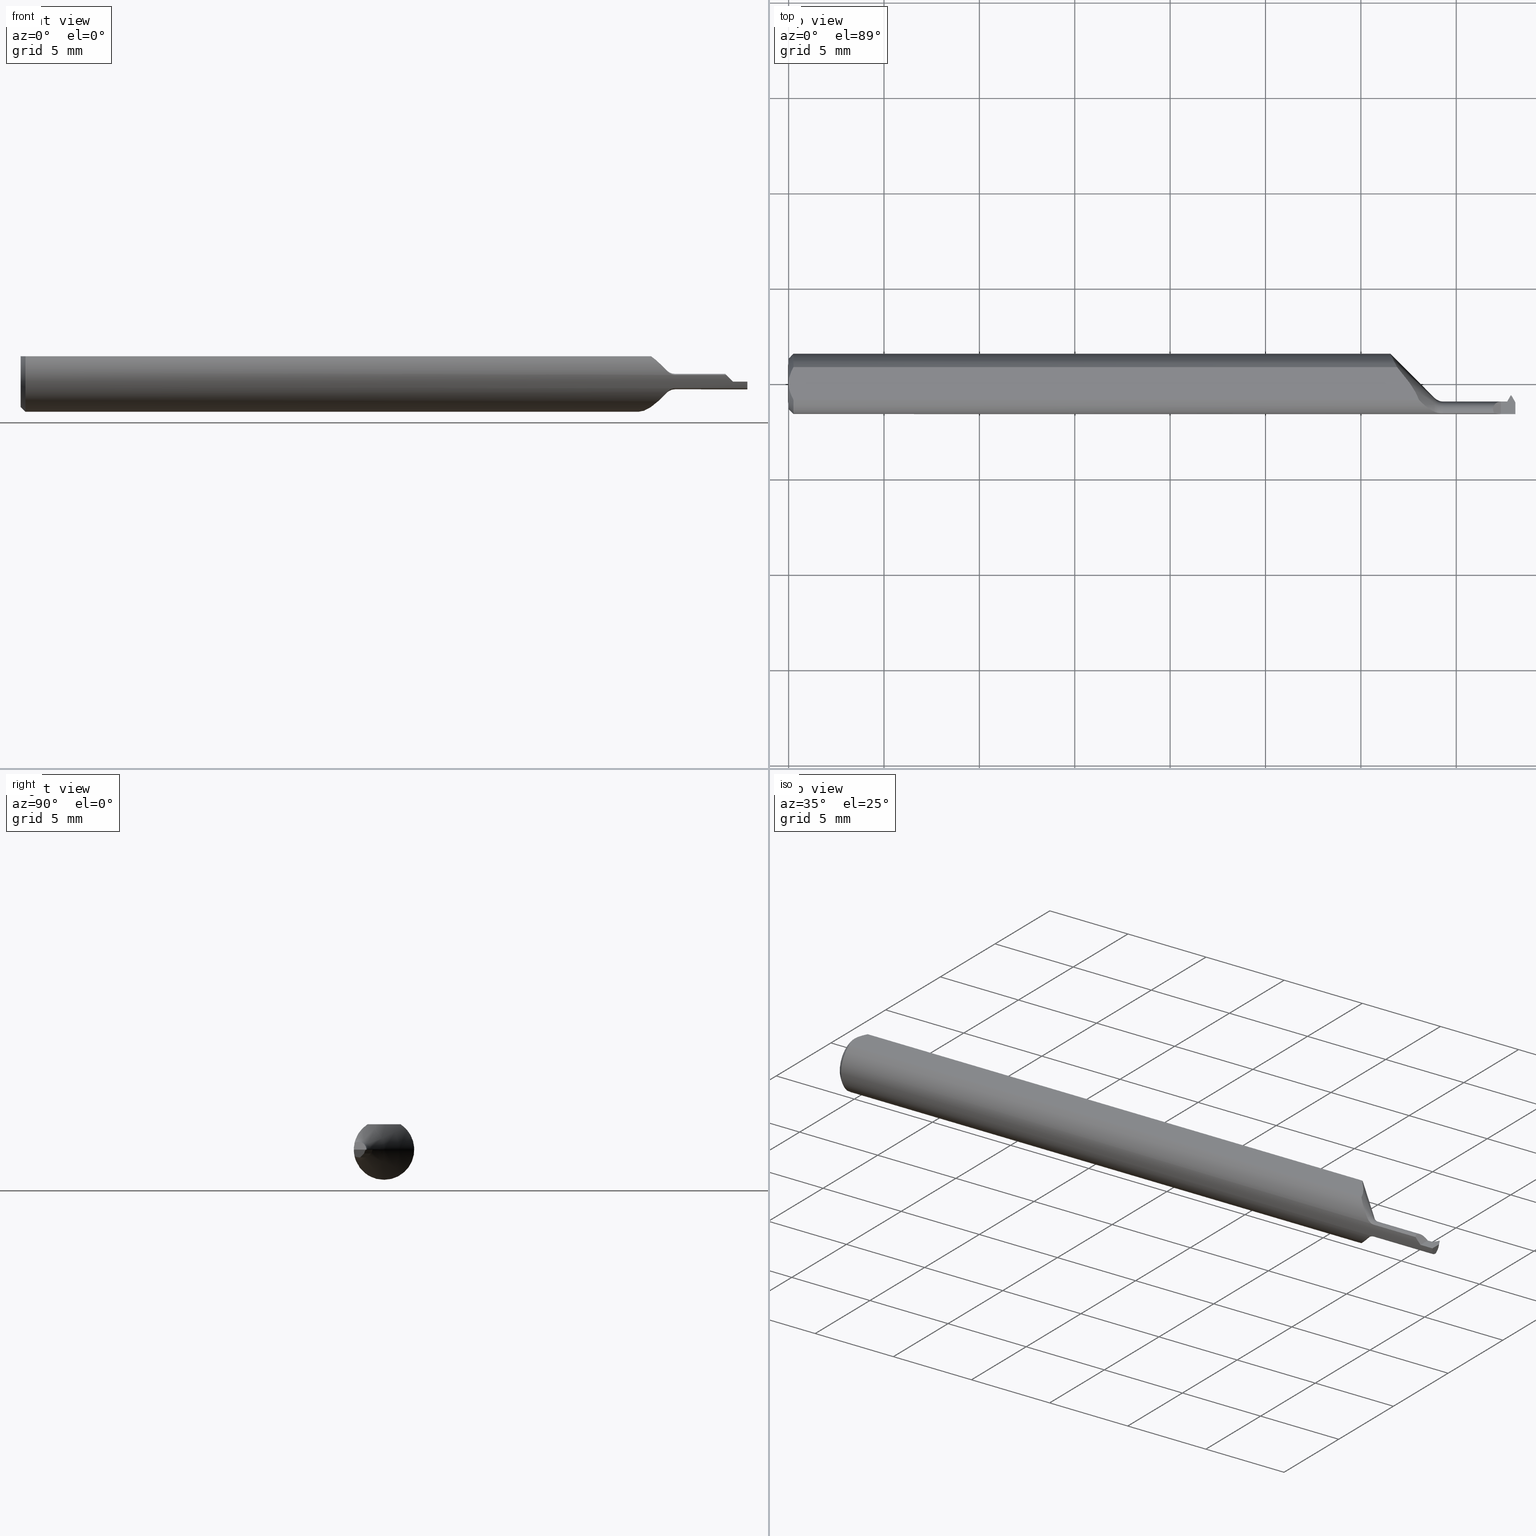
[diagram: canonical four-view strip — front | top / right | iso, engineering-drawing reading convention]
A machine part, canonical four-view strip (front | top / right | iso — engineering-drawing reading convention). The complete STEP part file that produces these views, byte-faithful:
ISO-10303-21;
HEADER;
FILE_DESCRIPTION (( 'STEP AP203' ),
    '1' );
FILE_NAME ('230007-TT040130.STEP',
    '2025-04-28T22:43:58',
    ( '' ),
    ( '' ),
    'SwSTEP 2.0',
    'SolidWorks 2024',
    '' );
FILE_SCHEMA (( 'CONFIG_CONTROL_DESIGN' ));
ENDSEC;

DATA;
#1 = ADVANCED_FACE ( 'NONE', ( #526 ), #479, .T. ) ;
#2 = CARTESIAN_POINT ( 'NONE',  ( 1.490999999999999659, 0.4617666623640701573, 0.4795058737510709546 ) ) ;
#3 = DIRECTION ( 'NONE',  ( 1.000000000000000000, 0.000000000000000000, 0.000000000000000000 ) ) ;
#4 = AXIS2_PLACEMENT_3D ( 'NONE', #648, #410, #726 ) ;
#5 = CALENDAR_DATE ( 2025, 28, 4 ) ;
#6 = AXIS2_PLACEMENT_3D ( 'NONE', #35, #661, #282 ) ;
#7 = CARTESIAN_POINT ( 'NONE',  ( 0.009999999999999887451, 0.03386738844375224849, 0.05234999999999997294 ) ) ;
#8 = CARTESIAN_POINT ( 'NONE',  ( 0.000000000000000000, 0.000000000000000000, 0.000000000000000000 ) ) ;
#9 = PERSON_AND_ORGANIZATION ( #677, #186 ) ;
#10 = DIRECTION ( 'NONE',  ( -0.1027016844787107946, 0.6087793493571359571, 0.7866638848971888587 ) ) ;
#11 = EDGE_CURVE ( 'NONE', #643, #597, #400, .T. ) ;
#12 = PERSON_AND_ORGANIZATION ( #677, #186 ) ;
#13 = DIRECTION ( 'NONE',  ( 0.000000000000000000, -1.000000000000000000, 0.000000000000000000 ) ) ;
#14 = CIRCLE ( 'NONE', #264, 0.06235000000000000264 ) ;
#15 = ORIENTED_EDGE ( 'NONE', *, *, #603, .T. ) ;
#16 = MANIFOLD_SOLID_BREP ( 'Cut-Sweep1', #721 ) ;
#17 = DIRECTION ( 'NONE',  ( 5.738690339323287023E-17, -1.000000000000000000, 0.000000000000000000 ) ) ;
#18 = VECTOR ( 'NONE', #107, 39.37007874015748854 ) ;
#19 = ORIENTED_EDGE ( 'NONE', *, *, #672, .T. ) ;
#20 = CARTESIAN_POINT ( 'NONE',  ( 1.335514613592296840, -0.05908664951645565405, -0.02008857447892332254 ) ) ;
#21 = EDGE_CURVE ( 'NONE', #707, #754, #387, .T. ) ;
#22 = PERSON_AND_ORGANIZATION_ROLE ( 'creator' ) ;
#23 = FACE_OUTER_BOUND ( 'NONE', #676, .T. ) ;
#24 = EDGE_LOOP ( 'NONE', ( #171, #214, #698 ) ) ;
#25 = CARTESIAN_POINT ( 'NONE',  ( 1.500000000000000222, -0.04132766865511521698, -0.007999999999999955064 ) ) ;
#26 = ORIENTED_EDGE ( 'NONE', *, *, #298, .T. ) ;
#27 = EDGE_LOOP ( 'NONE', ( #79, #713 ) ) ;
#28 = CARTESIAN_POINT ( 'NONE',  ( 1.481084930914247089, -0.03634999999999997261, 0.000000000000000000 ) ) ;
#29 =( GEOMETRIC_REPRESENTATION_CONTEXT ( 3 ) GLOBAL_UNCERTAINTY_ASSIGNED_CONTEXT ( ( #454 ) ) GLOBAL_UNIT_ASSIGNED_CONTEXT ( ( #635, #630, #381 ) ) REPRESENTATION_CONTEXT ( 'NONE', 'WORKASPACE' ) );
#30 = CC_DESIGN_PERSON_AND_ORGANIZATION_ASSIGNMENT ( #693, #22, ( #388 ) ) ;
#31 = EDGE_CURVE ( 'NONE', #58, #402, #412, .T. ) ;
#32 = CARTESIAN_POINT ( 'NONE',  ( 1.530712524866896240, 0.03504489937931520860, -0.01600000000000001421 ) ) ;
#33 = CARTESIAN_POINT ( 'NONE',  ( 1.255120519318515981, 0.03508918483241450781, -0.05178107122348592911 ) ) ;
#34 = APPROVAL_STATUS ( 'not_yet_approved' ) ;
#35 = CARTESIAN_POINT ( 'NONE',  ( 1.490500000000000158, -0.02334999999999999923, 0.000000000000000000 ) ) ;
#36 = CARTESIAN_POINT ( 'NONE',  ( 1.350999999999999979, -0.06086002865329517841, -0.01354914802930766264 ) ) ;
#37 = ADVANCED_FACE ( 'NONE', ( #407 ), #468, .F. ) ;
#38 = ORIENTED_EDGE ( 'NONE', *, *, #11, .F. ) ;
#39 = DIRECTION ( 'NONE',  ( -0.001540819590689127298, -0.3746061487342010055, -0.9271827539409469576 ) ) ;
#40 = LINE ( 'NONE', #224, #112 ) ;
#41 = ORIENTED_EDGE ( 'NONE', *, *, #530, .T. ) ;
#42 = APPROVAL_PERSON_ORGANIZATION ( #197, #489, #561 ) ;
#43 = DIRECTION ( 'NONE',  ( -0.02294223196864397102, 0.9997367923570168458, 0.000000000000000000 ) ) ;
#44 = CIRCLE ( 'NONE', #577, 0.05235000000000033377 ) ;
#45 = ORIENTED_EDGE ( 'NONE', *, *, #181, .T. ) ;
#46 = EDGE_CURVE ( 'NONE', #49, #231, #53, .T. ) ;
#47 = PRODUCT ( '230007-TT040130', '230007-TT040130', '', ( #756 ) ) ;
#48 = FACE_OUTER_BOUND ( 'NONE', #245, .T. ) ;
#49 = VERTEX_POINT ( 'NONE', #236 ) ;
#50 = CARTESIAN_POINT ( 'NONE',  ( 1.455766540632871031, -0.03635000000000006282, 0.01423345936712928916 ) ) ;
#51 = DIRECTION ( 'NONE',  ( 1.000000000000000000, 0.000000000000000000, 0.000000000000000000 ) ) ;
#52 = ORIENTED_EDGE ( 'NONE', *, *, #624, .F. ) ;
#53 =( BOUNDED_CURVE ( )  B_SPLINE_CURVE ( 3, ( #464, #654, #104, #668 ),
 .UNSPECIFIED., .F., .T. ) 
 B_SPLINE_CURVE_WITH_KNOTS ( ( 4, 4 ),
 ( 2.991310816743377732, 3.291874490436208056 ),
 .UNSPECIFIED. ) 
 CURVE ( )  GEOMETRIC_REPRESENTATION_ITEM ( )  RATIONAL_B_SPLINE_CURVE ( ( 1.000000000000000000, 0.9924859476630489841, 0.9924859476630489841, 1.000000000000000000 ) ) 
 REPRESENTATION_ITEM ( '' )  );
#54 = VECTOR ( 'NONE', #467, 39.37007874015748143 ) ;
#55 = CARTESIAN_POINT ( 'NONE',  ( 1.491486705364531984, -0.03458220980668112732, -0.01600000000000001421 ) ) ;
#56 = DIRECTION ( 'NONE',  ( 1.000000000000000000, 5.738690339323287023E-17, 0.000000000000000000 ) ) ;
#57 = EDGE_CURVE ( 'NONE', #437, #115, #416, .T. ) ;
#58 = VERTEX_POINT ( 'NONE', #594 ) ;
#59 = AXIS2_PLACEMENT_3D ( 'NONE', #302, #3, #247 ) ;
#60 = CARTESIAN_POINT ( 'NONE',  ( 0.009999999999999887451, 0.000000000000000000, 0.000000000000000000 ) ) ;
#61 = CARTESIAN_POINT ( 'NONE',  ( 1.322462965412670277, -0.05242313377551017367, 0.03436517021900221264 ) ) ;
#62 = CARTESIAN_POINT ( 'NONE',  ( 1.482994446500534913, -0.03635000000000006976, 0.000000000000000000 ) ) ;
#63 = EDGE_CURVE ( 'NONE', #402, #75, #95, .T. ) ;
#64 = VERTEX_POINT ( 'NONE', #351 ) ;
#65 = FACE_OUTER_BOUND ( 'NONE', #455, .T. ) ;
#66 = CARTESIAN_POINT ( 'NONE',  ( 1.682084930914247156, -0.05234999999999993825, -0.01600000000000001421 ) ) ;
#67 = DIRECTION ( 'NONE',  ( -1.224646799147350249E-16, 0.000000000000000000, -1.000000000000000000 ) ) ;
#68 = VECTOR ( 'NONE', #768, 39.37007874015748143 ) ;
#69 = CARTESIAN_POINT ( 'NONE',  ( 1.416542465457123479, -0.06086002865329513678, 0.01354914802930775805 ) ) ;
#70 = CARTESIAN_POINT ( 'NONE',  ( 0.000000000000000000, 0.000000000000000000, 0.05234999999999997294 ) ) ;
#71 = APPROVAL_ROLE ( '' ) ;
#72 = EDGE_CURVE ( 'NONE', #550, #710, #44, .T. ) ;
#73 = CARTESIAN_POINT ( 'NONE',  ( 1.487175960950038345, -1.496971022188108735, 0.2600946887543256758 ) ) ;
#74 = CYLINDRICAL_SURFACE ( 'NONE', #753, 0.06235000000000000264 ) ;
#75 = VERTEX_POINT ( 'NONE', #770 ) ;
#76 = DIRECTION ( 'NONE',  ( 1.000000000000000000, 0.000000000000000000, 0.000000000000000000 ) ) ;
#77 = FACE_OUTER_BOUND ( 'NONE', #793, .T. ) ;
#78 =( BOUNDED_CURVE ( )  B_SPLINE_CURVE ( 3, ( #752, #761, #629, #268 ),
 .UNSPECIFIED., .F., .T. ) 
 B_SPLINE_CURVE_WITH_KNOTS ( ( 4, 4 ),
 ( 3.342305517569140960, 4.511676116406237114 ),
 .UNSPECIFIED. ) 
 CURVE ( )  GEOMETRIC_REPRESENTATION_ITEM ( )  RATIONAL_B_SPLINE_CURVE ( ( 1.000000000000000000, 0.8892572147112807190, 0.8892572147112807190, 1.000000000000000000 ) ) 
 REPRESENTATION_ITEM ( '' )  );
#79 = ORIENTED_EDGE ( 'NONE', *, *, #637, .T. ) ;
#80 = CARTESIAN_POINT ( 'NONE',  ( 1.267454584078048674, 0.01260720869674350486, -0.06124853553781112181 ) ) ;
#81 = EDGE_CURVE ( 'NONE', #122, #707, #40, .T. ) ;
#82 = ORIENTED_EDGE ( 'NONE', *, *, #762, .F. ) ;
#83 = DIMENSIONAL_EXPONENTS ( 1.000000000000000000, 0.000000000000000000, 0.000000000000000000, 0.000000000000000000, 0.000000000000000000, 0.000000000000000000, 0.000000000000000000 ) ;
#84 = CALENDAR_DATE ( 2025, 28, 4 ) ;
#85 = CARTESIAN_POINT ( 'NONE',  ( 1.482994446500534913, -0.03635000000000006976, 0.000000000000000000 ) ) ;
#86 = VECTOR ( 'NONE', #670, 39.37007874015748143 ) ;
#87 = EDGE_LOOP ( 'NONE', ( #205, #289 ) ) ;
#88 = DIRECTION ( 'NONE',  ( 0.000000000000000000, -1.000000000000000000, 0.000000000000000000 ) ) ;
#89 = EDGE_CURVE ( 'NONE', #471, #115, #715, .T. ) ;
#90 = ORIENTED_EDGE ( 'NONE', *, *, #530, .F. ) ;
#91 = PLANE ( 'NONE',  #166 ) ;
#92 = ORIENTED_EDGE ( 'NONE', *, *, #57, .F. ) ;
#93 = CARTESIAN_POINT ( 'NONE',  ( 1.480646401958692460, -0.03635000000000005588, -0.002155438679221191416 ) ) ;
#94 = ORIENTED_EDGE ( 'NONE', *, *, #120, .F. ) ;
#95 = LINE ( 'NONE', #341, #18 ) ;
#96 = CARTESIAN_POINT ( 'NONE',  ( 1.259711240465376747, 0.02638752936846765554, -0.05671180232617656358 ) ) ;
#97 = AXIS2_PLACEMENT_3D ( 'NONE', #687, #485, #249 ) ;
#98 = APPROVAL_PERSON_ORGANIZATION ( #12, #466, #415 ) ;
#99 = LINE ( 'NONE', #344, #110 ) ;
#100 = EDGE_CURVE ( 'NONE', #586, #273, #101, .T. ) ;
#101 = LINE ( 'NONE', #346, #343 ) ;
#102 = PLANE ( 'NONE',  #680 ) ;
#103 = VECTOR ( 'NONE', #195, 39.37007874015748143 ) ;
#104 = CARTESIAN_POINT ( 'NONE',  ( 1.484130850350364961, -0.04042457170173155423, -0.01078764411677418482 ) ) ;
#105 = CARTESIAN_POINT ( 'NONE',  ( 1.301127731721387182, -0.03386738844375222074, 0.05234999999999997294 ) ) ;
#106 = ORIENTED_EDGE ( 'NONE', *, *, #21, .T. ) ;
#107 = DIRECTION ( 'NONE',  ( 0.4999999999999988898, 0.8660254037844391517, -0.000000000000000000 ) ) ;
#108 = ADVANCED_FACE ( 'NONE', ( #121 ), #679, .F. ) ;
#109 = EDGE_LOOP ( 'NONE', ( #19, #90 ) ) ;
#110 = VECTOR ( 'NONE', #572, 39.37007874015748143 ) ;
#111 = ORIENTED_EDGE ( 'NONE', *, *, #72, .F. ) ;
#112 = VECTOR ( 'NONE', #286, 39.37007874015748143 ) ;
#113 = ORIENTED_EDGE ( 'NONE', *, *, #490, .F. ) ;
#114 = DIRECTION ( 'NONE',  ( -0.4999999999999815148, -0.8660254037844492547, 0.000000000000000000 ) ) ;
#115 = VERTEX_POINT ( 'NONE', #366 ) ;
#116 = DIRECTION ( 'NONE',  ( 0.000000000000000000, -0.7071067811865433539, -0.7071067811865514585 ) ) ;
#117 = DIRECTION ( 'NONE',  ( -1.000000000000000000, -5.738690339323287023E-17, -0.000000000000000000 ) ) ;
#118 = ORIENTED_EDGE ( 'NONE', *, *, #81, .F. ) ;
#119 = DIRECTION ( 'NONE',  ( -1.000000000000000000, 0.000000000000000000, 1.224646799147350249E-16 ) ) ;
#120 = EDGE_CURVE ( 'NONE', #277, #293, #478, .T. ) ;
#121 = FACE_OUTER_BOUND ( 'NONE', #146, .T. ) ;
#122 = VERTEX_POINT ( 'NONE', #795 ) ;
#123 = VECTOR ( 'NONE', #219, 39.37007874015748143 ) ;
#124 = LINE ( 'NONE', #365, #764 ) ;
#125 = CARTESIAN_POINT ( 'NONE',  ( 1.333322330470335881, -0.05810997040527625390, 0.02259986370529519506 ) ) ;
#126 = FACE_OUTER_BOUND ( 'NONE', #428, .T. ) ;
#127 = PLANE ( 'NONE',  #161 ) ;
#128 = CARTESIAN_POINT ( 'NONE',  ( 0.000000000000000000, 0.000000000000000000, 0.05234999999999997294 ) ) ;
#129 = EDGE_CURVE ( 'NONE', #583, #471, #785, .T. ) ;
#130 = CARTESIAN_POINT ( 'NONE',  ( 1.490513294635467556, -0.02658220980668115491, -0.007999999999999955064 ) ) ;
#131 = LOCAL_TIME ( 15, 43, 58.00000000000000000, #448 ) ;
#132 = CIRCLE ( 'NONE', #59, 0.06235000000000000264 ) ;
#133 = APPROVAL_DATE_TIME ( #567, #607 ) ;
#134 = ORIENTED_EDGE ( 'NONE', *, *, #31, .T. ) ;
#135 = FACE_OUTER_BOUND ( 'NONE', #681, .T. ) ;
#136 = CALENDAR_DATE ( 2025, 28, 4 ) ;
#137 = DIRECTION ( 'NONE',  ( -1.000000000000000000, -5.738690339323287023E-17, -0.000000000000000000 ) ) ;
#138 = EDGE_CURVE ( 'NONE', #597, #58, #430, .T. ) ;
#139 = ORIENTED_EDGE ( 'NONE', *, *, #81, .T. ) ;
#140 = CARTESIAN_POINT ( 'NONE',  ( 1.319252352888224955, -0.05006968415849936960, -0.03739237339314652186 ) ) ;
#141 = PERSON_AND_ORGANIZATION ( #677, #186 ) ;
#142 = CARTESIAN_POINT ( 'NONE',  ( 1.350999999999999979, -0.05235000000000002152, 0.000000000000000000 ) ) ;
#143 = AXIS2_PLACEMENT_3D ( 'NONE', #495, #67, #119 ) ;
#144 = VERTEX_POINT ( 'NONE', #434 ) ;
#145 = CARTESIAN_POINT ( 'NONE',  ( 1.251549129668147575, 0.04215857753974009553, 0.04623189580670657856 ) ) ;
#146 = EDGE_LOOP ( 'NONE', ( #686, #532, #266, #134 ) ) ;
#147 = CARTESIAN_POINT ( 'NONE',  ( 1.350999999999999979, -0.06086002865329517841, 0.01354914802930766264 ) ) ;
#148 = AXIS2_PLACEMENT_3D ( 'NONE', #66, #255, #729 ) ;
#149 = ORIENTED_EDGE ( 'NONE', *, *, #709, .T. ) ;
#150 = CARTESIAN_POINT ( 'NONE',  ( 1.480216676601453285, -0.03677972535723927211, -0.004267606290285338479 ) ) ;
#151 = CC_DESIGN_PERSON_AND_ORGANIZATION_ASSIGNMENT ( #211, #258, ( #615 ) ) ;
#152 = ORIENTED_EDGE ( 'NONE', *, *, #288, .F. ) ;
#154 = DIRECTION ( 'NONE',  ( -0.5000000000000122125, 0.8660254037844316022, 0.000000000000000000 ) ) ;
#153 = APPLICATION_CONTEXT ( 'configuration controlled 3d designs of mechanical parts and assemblies' ) ;
#155 = FACE_OUTER_BOUND ( 'NONE', #109, .T. ) ;
#156 = EDGE_CURVE ( 'NONE', #707, #277, #674, .T. ) ;
#157 = ORIENTED_EDGE ( 'NONE', *, *, #519, .F. ) ;
#158 = DIRECTION ( 'NONE',  ( -1.000000000000000000, -0.000000000000000000, -0.000000000000000000 ) ) ;
#159 = ORIENTED_EDGE ( 'NONE', *, *, #792, .T. ) ;
#160 = FACE_OUTER_BOUND ( 'NONE', #24, .T. ) ;
#161 = AXIS2_PLACEMENT_3D ( 'NONE', #438, #545, #617 ) ;
#162 = LOCAL_TIME ( 15, 43, 58.00000000000000000, #569 ) ;
#163 = LINE ( 'NONE', #476, #198 ) ;
#164 = CARTESIAN_POINT ( 'NONE',  ( 1.295903638438954397, -0.02116583655497127070, 0.05234999999999997988 ) ) ;
#165 = CARTESIAN_POINT ( 'NONE',  ( 1.470000000000000195, -0.03635000000000006976, 2.041212744788427470E-17 ) ) ;
#166 = AXIS2_PLACEMENT_3D ( 'NONE', #275, #525, #168 ) ;
#167 = EDGE_LOOP ( 'NONE', ( #557, #296, #773, #364, #82 ) ) ;
#168 = DIRECTION ( 'NONE',  ( 0.4999999999999948375, -0.8660254037844414832, 0.000000000000000000 ) ) ;
#169 = EDGE_CURVE ( 'NONE', #553, #58, #359, .T. ) ;
#170 = DIRECTION ( 'NONE',  ( -1.000000000000000000, -5.738690339323287023E-17, -0.000000000000000000 ) ) ;
#171 = ORIENTED_EDGE ( 'NONE', *, *, #745, .F. ) ;
#172 = B_SPLINE_CURVE_WITH_KNOTS ( 'NONE', 3,
 ( #128, #179, #362, #377, #259, #7 ),
 .UNSPECIFIED., .F., .F.,
 ( 4, 2, 4 ),
 ( 0.003093386807937206339, 0.003544501666246027347, 0.003995616524554848788 ),
 .UNSPECIFIED. ) ;
#173 = CARTESIAN_POINT ( 'NONE',  ( 1.298966724932452577, -0.02737628946790740883, 0.05234999999999997294 ) ) ;
#174 = AXIS2_PLACEMENT_3D ( 'NONE', #794, #738, #558 ) ;
#175 = EDGE_LOOP ( 'NONE', ( #494, #152, #610, #480, #92, #711 ) ) ;
#176 = CARTESIAN_POINT ( 'NONE',  ( 1.482994446500534913, -0.03635000000000006976, 0.000000000000000000 ) ) ;
#177 = ORIENTED_EDGE ( 'NONE', *, *, #308, .F. ) ;
#178 = LINE ( 'NONE', #426, #703 ) ;
#179 = CARTESIAN_POINT ( 'NONE',  ( -1.133440131013889109E-15, 0.005954997531774002505, 0.05234999999999997294 ) ) ;
#180 = ORIENTED_EDGE ( 'NONE', *, *, #709, .F. ) ;
#181 = EDGE_CURVE ( 'NONE', #783, #229, #188, .T. ) ;
#182 = CARTESIAN_POINT ( 'NONE',  ( 1.500000000000000222, -0.03807243186433599547, 0.000000000000000000 ) ) ;
#183 = CARTESIAN_POINT ( 'NONE',  ( 1.241944660940673462, -0.05235000000000003539, 0.000000000000000000 ) ) ;
#184 = DIRECTION ( 'NONE',  ( 1.000000000000000000, 0.000000000000000000, 0.000000000000000000 ) ) ;
#185 = ORIENTED_EDGE ( 'NONE', *, *, #298, .F. ) ;
#186 = ORGANIZATION ( 'UNSPECIFIED', 'UNSPECIFIED', '' ) ;
#187 = CARTESIAN_POINT ( 'NONE',  ( 0.000000000000000000, 0.000000000000000000, -0.05235000000000033377 ) ) ;
#188 = LINE ( 'NONE', #493, #86 ) ;
#189 = ORIENTED_EDGE ( 'NONE', *, *, #775, .F. ) ;
#190 = VECTOR ( 'NONE', #170, 39.37007874015748143 ) ;
#191 = DIRECTION ( 'NONE',  ( -0.4999999999999815148, -0.8660254037844492547, 0.000000000000000000 ) ) ;
#192 = CARTESIAN_POINT ( 'NONE',  ( 1.483934152419251307, -0.03946995698028540195, -0.009492338584895676501 ) ) ;
#193 = ADVANCED_FACE ( 'NONE', ( #48 ), #546, .T. ) ;
#194 = COORDINATED_UNIVERSAL_TIME_OFFSET ( 8, 0, .BEHIND. ) ;
#195 = DIRECTION ( 'NONE',  ( 1.000000000000000000, 5.738690339323287023E-17, 0.000000000000000000 ) ) ;
#196 = CARTESIAN_POINT ( 'NONE',  ( 0.000000000000000000, 0.000000000000000000, 0.000000000000000000 ) ) ;
#197 = PERSON_AND_ORGANIZATION ( #677, #186 ) ;
#198 = VECTOR ( 'NONE', #39, 39.37007874015748143 ) ;
#199 = DIRECTION ( 'NONE',  ( 0.000000000000000000, -1.000000000000000000, 0.000000000000000000 ) ) ;
#200 = PRODUCT_DEFINITION ( 'UNKNOWN', '', #388, #331 ) ;
#201 = ADVANCED_FACE ( 'NONE', ( #250 ), #623, .F. ) ;
#202 = VECTOR ( 'NONE', #10, 39.37007874015748143 ) ;
#203 = PERSON_AND_ORGANIZATION ( #677, #186 ) ;
#204 = DIRECTION ( 'NONE',  ( -1.000000000000000000, -5.738690339323287023E-17, -0.000000000000000000 ) ) ;
#205 = ORIENTED_EDGE ( 'NONE', *, *, #672, .F. ) ;
#206 = CARTESIAN_POINT ( 'NONE',  ( 1.333322330470335881, -0.05810997040527625390, -0.02259986370529519506 ) ) ;
#207 = EDGE_CURVE ( 'NONE', #222, #583, #218, .T. ) ;
#208 = ORIENTED_EDGE ( 'NONE', *, *, #320, .F. ) ;
#209 = DIRECTION ( 'NONE',  ( 0.000000000000000000, 0.000000000000000000, -1.000000000000000000 ) ) ;
#210 = ORIENTED_EDGE ( 'NONE', *, *, #129, .F. ) ;
#211 = PERSON_AND_ORGANIZATION ( #677, #186 ) ;
#212 = DIRECTION ( 'NONE',  ( 0.1120836188533543276, 0.000000000000000000, -0.9936987784961476278 ) ) ;
#213 = VECTOR ( 'NONE', #506, 39.37007874015748854 ) ;
#214 = ORIENTED_EDGE ( 'NONE', *, *, #548, .F. ) ;
#215 = CARTESIAN_POINT ( 'NONE',  ( 1.483728791208669406, -0.03762192234469097923, -0.006251698055842510281 ) ) ;
#216 = ORIENTED_EDGE ( 'NONE', *, *, #751, .T. ) ;
#217 = CARTESIAN_POINT ( 'NONE',  ( 1.491499999999999826, -0.02334999999999999923, 0.000000000000000000 ) ) ;
#218 = CIRCLE ( 'NONE', #487, 0.01600000000000001421 ) ;
#219 = DIRECTION ( 'NONE',  ( 1.000000000000000000, -4.917858511161289472E-14, -0.000000000000000000 ) ) ;
#220 = LINE ( 'NONE', #283, #510 ) ;
#221 = EDGE_CURVE ( 'NONE', #144, #360, #132, .T. ) ;
#222 = VERTEX_POINT ( 'NONE', #787 ) ;
#223 = CARTESIAN_POINT ( 'NONE',  ( 1.546829940590226160, -0.1304395050728162642, -0.01600000000000001421 ) ) ;
#224 = CARTESIAN_POINT ( 'NONE',  ( 0.000000000000000000, -0.03386738844375224849, 0.05234999999999997294 ) ) ;
#225 = CARTESIAN_POINT ( 'NONE',  ( 1.333322330470335881, -0.05810997040527625390, -0.02259986370529519506 ) ) ;
#226 =( BOUNDED_CURVE ( )  B_SPLINE_CURVE ( 3, ( #371, #720, #50, #165 ),
 .UNSPECIFIED., .F., .F. ) 
 B_SPLINE_CURVE_WITH_KNOTS ( ( 4, 4 ),
 ( 5.722370004300532997, 7.853981633974482790 ),
 .UNSPECIFIED. ) 
 CURVE ( )  GEOMETRIC_REPRESENTATION_ITEM ( )  RATIONAL_B_SPLINE_CURVE ( ( 1.000000000000000000, 0.6558660910732960758, 0.6558660910732960758, 1.000000000000000000 ) ) 
 REPRESENTATION_ITEM ( '' )  );
#227 = LINE ( 'NONE', #429, #614 ) ;
#228 = VECTOR ( 'NONE', #611, 39.37007874015748143 ) ;
#229 = VERTEX_POINT ( 'NONE', #746 ) ;
#230 = ADVANCED_FACE ( 'NONE', ( #242 ), #311, .F. ) ;
#231 = VERTEX_POINT ( 'NONE', #192 ) ;
#232 = VECTOR ( 'NONE', #520, 39.37007874015748143 ) ;
#233 = ORIENTED_EDGE ( 'NONE', *, *, #207, .F. ) ;
#234 = DIRECTION ( 'NONE',  ( 0.000000000000000000, -0.9271838545667897558, 0.3746065934159062971 ) ) ;
#235 = ADVANCED_FACE ( 'NONE', ( #733 ), #368, .T. ) ;
#236 = CARTESIAN_POINT ( 'NONE',  ( 1.483934152419251307, -0.04285766141510419236, -0.01288004301971450334 ) ) ;
#237 = EDGE_LOOP ( 'NONE', ( #304, #45, #251, #728 ) ) ;
#238 = CARTESIAN_POINT ( 'NONE',  ( 1.335514962631105584, -0.05908680501565558019, 0.02008817465087433737 ) ) ;
#239 = CIRCLE ( 'NONE', #4, 0.06235000000000000264 ) ;
#240 = ORIENTED_EDGE ( 'NONE', *, *, #334, .T. ) ;
#241 = CARTESIAN_POINT ( 'NONE',  ( 1.490496461273201900, -0.02248965994110998026, 0.002129416369226141709 ) ) ;
#242 = FACE_OUTER_BOUND ( 'NONE', #27, .T. ) ;
#243 = VECTOR ( 'NONE', #563, 39.37007874015748143 ) ;
#244 = EDGE_CURVE ( 'NONE', #550, #360, #172, .T. ) ;
#245 = EDGE_LOOP ( 'NONE', ( #604, #498, #779, #240 ) ) ;
#246 = DIRECTION ( 'NONE',  ( -0.1143501000964186193, 0.1980601832175949151, 0.9734969021171826498 ) ) ;
#247 = DIRECTION ( 'NONE',  ( 0.000000000000000000, 0.000000000000000000, -1.000000000000000000 ) ) ;
#248 = ORIENTED_EDGE ( 'NONE', *, *, #156, .T. ) ;
#249 = DIRECTION ( 'NONE',  ( 1.000000000000000000, 0.000000000000000000, -0.000000000000000000 ) ) ;
#250 = FACE_OUTER_BOUND ( 'NONE', #175, .T. ) ;
#251 = ORIENTED_EDGE ( 'NONE', *, *, #739, .F. ) ;
#252 = CIRCLE ( 'NONE', #323, 0.02332233047033629991 ) ;
#253 = DIRECTION ( 'NONE',  ( 1.000000000000000000, 0.000000000000000000, 0.000000000000000000 ) ) ;
#254 = EDGE_CURVE ( 'NONE', #293, #335, #683, .T. ) ;
#255 = DIRECTION ( 'NONE',  ( 0.000000000000000000, 0.000000000000000000, 1.000000000000000000 ) ) ;
#256 = DIRECTION ( 'NONE',  ( 0.000000000000000000, 0.000000000000000000, -1.000000000000000000 ) ) ;
#257 = AXIS2_PLACEMENT_3D ( 'NONE', #183, #117, #439 ) ;
#258 = PERSON_AND_ORGANIZATION_ROLE ( 'classification_officer' ) ;
#259 = CARTESIAN_POINT ( 'NONE',  ( 0.007185421074056196067, 0.02868573718286566293, 0.05234999999999997294 ) ) ;
#260 = DIRECTION ( 'NONE',  ( 0.000000000000000000, 0.000000000000000000, -1.000000000000000000 ) ) ;
#261 = PERSON_AND_ORGANIZATION_ROLE ( 'creator' ) ;
#262 = DIRECTION ( 'NONE',  ( -1.000000000000000000, -0.000000000000000000, -0.000000000000000000 ) ) ;
#263 = ADVANCED_FACE ( 'NONE', ( #23, #574 ), #626, .T. ) ;
#264 = AXIS2_PLACEMENT_3D ( 'NONE', #60, #253, #673 ) ;
#265 = FACE_OUTER_BOUND ( 'NONE', #542, .T. ) ;
#266 = ORIENTED_EDGE ( 'NONE', *, *, #138, .T. ) ;
#267 = DIRECTION ( 'NONE',  ( 1.000000000000000000, 5.738690339323287023E-17, 0.000000000000000000 ) ) ;
#268 = CARTESIAN_POINT ( 'NONE',  ( 1.483728791208669406, -0.03762192234469097923, -0.006251698055842510281 ) ) ;
#269 = ORIENTED_EDGE ( 'NONE', *, *, #477, .F. ) ;
#270 = DIRECTION ( 'NONE',  ( 1.000000000000000000, 0.000000000000000000, 0.000000000000000000 ) ) ;
#271 = PERSON_AND_ORGANIZATION ( #677, #186 ) ;
#272 = LINE ( 'NONE', #69, #103 ) ;
#273 = VERTEX_POINT ( 'NONE', #570 ) ;
#274 = CARTESIAN_POINT ( 'NONE',  ( 1.243272724521851558, 0.05945386056944194225, 0.01957025641302970534 ) ) ;
#275 = CARTESIAN_POINT ( 'NONE',  ( 1.491499999999999826, -0.02334999999999999923, 0.000000000000000000 ) ) ;
#276 = VECTOR ( 'NONE', #267, 39.37007874015748143 ) ;
#277 = VERTEX_POINT ( 'NONE', #706 ) ;
#278 = LINE ( 'NONE', #527, #68 ) ;
#279 = DIRECTION ( 'NONE',  ( -1.000000000000000000, -0.000000000000000000, -0.000000000000000000 ) ) ;
#280 = CARTESIAN_POINT ( 'NONE',  ( 1.278998297401819029, -0.006049595647838722397, -0.06275710159956590650 ) ) ;
#281 = CARTESIAN_POINT ( 'NONE',  ( 1.485166328632314459, -0.05235000000000001458, -0.01599999999999997952 ) ) ;
#282 = DIRECTION ( 'NONE',  ( 0.4999999999999988343, 0.8660254037844391517, 0.000000000000000000 ) ) ;
#283 = CARTESIAN_POINT ( 'NONE',  ( 0.000000000000000000, 0.03386738844375224849, 0.05234999999999997294 ) ) ;
#284 = ORIENTED_EDGE ( 'NONE', *, *, #120, .T. ) ;
#285 = DIRECTION ( 'NONE',  ( 0.4999999999999948375, -0.8660254037844414832, 0.000000000000000000 ) ) ;
#286 = DIRECTION ( 'NONE',  ( 1.000000000000000000, 0.000000000000000000, 0.000000000000000000 ) ) ;
#287 = CC_DESIGN_APPROVAL ( #607, ( #200 ) ) ;
#288 = EDGE_CURVE ( 'NONE', #583, #64, #757, .T. ) ;
#289 = ORIENTED_EDGE ( 'NONE', *, *, #46, .F. ) ;
#290 = CARTESIAN_POINT ( 'NONE',  ( 0.009999999999999887451, -0.03386738844375224849, 0.05234999999999997294 ) ) ;
#291 = DIRECTION ( 'NONE',  ( 0.5000000000000108802, 0.8660254037844322683, -6.789096001778732943E-14 ) ) ;
#292 = AXIS2_PLACEMENT_3D ( 'NONE', #632, #204, #319 ) ;
#293 = VERTEX_POINT ( 'NONE', #147 ) ;
#294 = CC_DESIGN_PERSON_AND_ORGANIZATION_ASSIGNMENT ( #203, #705, ( #47 ) ) ;
#295 = CARTESIAN_POINT ( 'NONE',  ( 1.682084930914247156, -0.05234999999999993825, -0.01600000000000001421 ) ) ;
#296 = ORIENTED_EDGE ( 'NONE', *, *, #578, .T. ) ;
#297 = DIRECTION ( 'NONE',  ( -0.000000000000000000, 0.000000000000000000, 1.000000000000000000 ) ) ;
#298 = EDGE_CURVE ( 'NONE', #273, #229, #747, .T. ) ;
#299 = DIRECTION ( 'NONE',  ( 0.000000000000000000, 0.000000000000000000, 1.000000000000000000 ) ) ;
#300 = VERTEX_POINT ( 'NONE', #446 ) ;
#301 = LINE ( 'NONE', #790, #420 ) ;
#302 = CARTESIAN_POINT ( 'NONE',  ( 0.009999999999999887451, 0.000000000000000000, 0.000000000000000000 ) ) ;
#303 = AXIS2_PLACEMENT_3D ( 'NONE', #142, #137, #17 ) ;
#304 = ORIENTED_EDGE ( 'NONE', *, *, #505, .T. ) ;
#305 = FACE_OUTER_BOUND ( 'NONE', #354, .T. ) ;
#306 = CARTESIAN_POINT ( 'NONE',  ( 1.350999999999999979, -0.06086002865329517841, 0.01354914802930766264 ) ) ;
#307 = CARTESIAN_POINT ( 'NONE',  ( 1.456450851970692240, -0.06086002865329514372, 0.01354914802930778234 ) ) ;
#308 = EDGE_CURVE ( 'NONE', #669, #575, #504, .T. ) ;
#309 = ORIENTED_EDGE ( 'NONE', *, *, #562, .F. ) ;
#310 = CARTESIAN_POINT ( 'NONE',  ( 1.255778608326025614, 0.03386738844375224849, 0.05234999999999997294 ) ) ;
#311 = PLANE ( 'NONE',  #789 ) ;
#312 = AXIS2_PLACEMENT_3D ( 'NONE', #8, #442, #260 ) ;
#313 = LENGTH_MEASURE_WITH_UNIT ( LENGTH_MEASURE( 0.02539999999999999897 ), #641 );
#314 = CARTESIAN_POINT ( 'NONE',  ( 1.350999999999999979, -0.06086002865329517841, -0.01354914802930766264 ) ) ;
#315 = CARTESIAN_POINT ( 'NONE',  ( 1.470000000000000195, -0.03635000000000006976, 2.041212744788427470E-17 ) ) ;
#316 = DIRECTION ( 'NONE',  ( 0.9934405138748503283, 0.02279774325663360204, 0.1120544880603985410 ) ) ;
#317 = CARTESIAN_POINT ( 'NONE',  ( 1.500000000000000222, -0.06235000000000000264, 0.000000000000000000 ) ) ;
#318 = APPLICATION_PROTOCOL_DEFINITION ( 'international standard', 'config_control_design', 1994, #486 ) ;
#319 = DIRECTION ( 'NONE',  ( 0.000000000000000000, -1.000000000000000000, 0.000000000000000000 ) ) ;
#320 = EDGE_CURVE ( 'NONE', #293, #534, #272, .T. ) ;
#321 = ORIENTED_EDGE ( 'NONE', *, *, #477, .T. ) ;
#322 = APPLICATION_PROTOCOL_DEFINITION ( 'international standard', 'config_control_design', 1994, #153 ) ;
#323 = AXIS2_PLACEMENT_3D ( 'NONE', #639, #326, #88 ) ;
#324 = CARTESIAN_POINT ( 'NONE',  ( 1.500000000000000222, 0.000000000000000000, 0.000000000000000000 ) ) ;
#325 = ORIENTED_EDGE ( 'NONE', *, *, #244, .F. ) ;
#326 = DIRECTION ( 'NONE',  ( -1.000000000000000000, -5.738690339323287023E-17, -0.000000000000000000 ) ) ;
#327 = ORIENTED_EDGE ( 'NONE', *, *, #514, .T. ) ;
#328 = AXIS2_PLACEMENT_3D ( 'NONE', #458, #379, #199 ) ;
#329 = DATE_AND_TIME ( #5, #131 ) ;
#330 = LINE ( 'NONE', #777, #393 ) ;
#331 = DESIGN_CONTEXT ( 'detailed design', #153, 'design' ) ;
#332 = ORIENTED_EDGE ( 'NONE', *, *, #254, .F. ) ;
#333 = CARTESIAN_POINT ( 'NONE',  ( 1.241873511088373849, 0.06250586468241341176, 0.003396618903314566063 ) ) ;
#334 = EDGE_CURVE ( 'NONE', #273, #437, #690, .T. ) ;
#335 = VERTEX_POINT ( 'NONE', #314 ) ;
#336 = DIRECTION ( 'NONE',  ( -0.000000000000000000, 1.000000000000000000, -0.000000000000000000 ) ) ;
#337 = ORIENTED_EDGE ( 'NONE', *, *, #651, .F. ) ;
#338 = CARTESIAN_POINT ( 'NONE',  ( 1.245021625917490660, 0.05568172665076242395, -0.02855154692902700173 ) ) ;
#339 = DATE_AND_TIME ( #765, #549 ) ;
#340 = VECTOR ( 'NONE', #158, 39.37007874015748143 ) ;
#341 = CARTESIAN_POINT ( 'NONE',  ( 1.490500000000000158, -0.02334999999999999923, 0.000000000000000000 ) ) ;
#342 = CARTESIAN_POINT ( 'NONE',  ( 1.246566698396099460, 0.05241341464178986276, 0.03419461053979926807 ) ) ;
#343 = VECTOR ( 'NONE', #291, 39.37007874015748854 ) ;
#344 = CARTESIAN_POINT ( 'NONE',  ( 1.500000000000000222, -0.03266417948640575747, 0.01329120485059552895 ) ) ;
#345 = EDGE_CURVE ( 'NONE', #471, #643, #78, .T. ) ;
#346 = CARTESIAN_POINT ( 'NONE',  ( 1.491909558878074193, -0.02416380919769533023, -0.008000000000000390479 ) ) ;
#347 = CARTESIAN_POINT ( 'NONE',  ( 1.338157920637270015, -0.05976086399941056559, -0.01786148374055650245 ) ) ;
#348 = CARTESIAN_POINT ( 'NONE',  ( 1.285224182788650138, -0.003615021247189862275, 0.05234999999999997294 ) ) ;
#349 = ORIENTED_EDGE ( 'NONE', *, *, #562, .T. ) ;
#350 = FACE_OUTER_BOUND ( 'NONE', #484, .T. ) ;
#351 = CARTESIAN_POINT ( 'NONE',  ( 1.500000000000000222, -0.04932766865511520327, -0.01599999999999999686 ) ) ;
#352 = AXIS2_PLACEMENT_3D ( 'NONE', #369, #436, #565 ) ;
#353 = CC_DESIGN_DATE_AND_TIME_ASSIGNMENT ( #503, #689, ( #615 ) ) ;
#354 = EDGE_LOOP ( 'NONE', ( #649, #111, #383, #397 ) ) ;
#355 = CARTESIAN_POINT ( 'NONE',  ( 1.264639298171978288, 0.02350123349129881051, 0.05234999999999997294 ) ) ;
#356 = ORIENTED_EDGE ( 'NONE', *, *, #345, .T. ) ;
#357 = ADVANCED_FACE ( 'NONE', ( #265 ), #642, .F. ) ;
#358 = DIRECTION ( 'NONE',  ( -0.7745966692415005017, 0.4472135954999457708, -0.4472135954999406082 ) ) ;
#359 = LINE ( 'NONE', #555, #592 ) ;
#360 = VERTEX_POINT ( 'NONE', #697 ) ;
#361 = LINE ( 'NONE', #551, #228 ) ;
#362 = CARTESIAN_POINT ( 'NONE',  ( 0.001063697276021325104, 0.01189177144351695990, 0.05234999999999997988 ) ) ;
#363 = CONICAL_SURFACE ( 'NONE', #174, 0.05235000000000033377, 0.7853981633974376209 ) ;
#364 = ORIENTED_EDGE ( 'NONE', *, *, #63, .T. ) ;
#365 = CARTESIAN_POINT ( 'NONE',  ( 1.279903764418712786, 0.3398901939263406780, -0.007999999999970450887 ) ) ;
#366 = CARTESIAN_POINT ( 'NONE',  ( 1.484978580022452865, -0.04416861672181706527, -0.01599999999999996217 ) ) ;
#367 = EDGE_CURVE ( 'NONE', #115, #586, #568, .T. ) ;
#368 = CONICAL_SURFACE ( 'NONE', #257, 0.1147000000000000380, 0.7853981633974553844 ) ;
#369 = CARTESIAN_POINT ( 'NONE',  ( 1.483934152419251307, -0.05235000000000001458, 0.000000000000000000 ) ) ;
#370 = ORIENTED_EDGE ( 'NONE', *, *, #598, .T. ) ;
#371 = CARTESIAN_POINT ( 'NONE',  ( 1.456450851970692240, -0.06086002865329514372, 0.01354914802930778234 ) ) ;
#372 = CARTESIAN_POINT ( 'NONE',  ( 1.490999999999999659, 0.4617666623640701573, 0.4795058737510709546 ) ) ;
#373 = ADVANCED_FACE ( 'NONE', ( #511 ), #74, .T. ) ;
#374 = DIRECTION ( 'NONE',  ( 0.000000000000000000, -0.7071067811865433539, -0.7071067811865514585 ) ) ;
#375 = CARTESIAN_POINT ( 'NONE',  ( 1.344127258983879969, -0.06064446188155016987, 0.01458464786448843836 ) ) ;
#376 = DATE_AND_TIME ( #84, #741 ) ;
#377 = CARTESIAN_POINT ( 'NONE',  ( 0.004671770759546750584, 0.02323517832780109052, 0.05234999999999998682 ) ) ;
#378 = ADVANCED_FACE ( 'NONE', ( #77 ), #744, .F. ) ;
#379 = DIRECTION ( 'NONE',  ( -1.000000000000000000, -5.738690339323287023E-17, -0.000000000000000000 ) ) ;
#380 = ORIENTED_EDGE ( 'NONE', *, *, #21, .F. ) ;
#381 =( NAMED_UNIT ( * ) SI_UNIT ( $, .STERADIAN. ) SOLID_ANGLE_UNIT ( ) );
#382 = PLANE ( 'NONE',  #513 ) ;
#383 = ORIENTED_EDGE ( 'NONE', *, *, #244, .T. ) ;
#384 = CARTESIAN_POINT ( 'NONE',  ( 1.347510812968343075, -0.06086002865329517147, -0.01354914802930767305 ) ) ;
#385 = ORIENTED_EDGE ( 'NONE', *, *, #739, .T. ) ;
#386 = APPROVAL_STATUS ( 'not_yet_approved' ) ;
#387 = B_SPLINE_CURVE_WITH_KNOTS ( 'NONE', 3,
 ( #727, #173, #164, #474, #348, #418, #355, #778 ),
 .UNSPECIFIED., .F., .F.,
 ( 4, 2, 2, 4 ),
 ( 0.001839256232207844149, 0.002352703369855393099, 0.002866150507502942049, 0.003893044782798039949 ),
 .UNSPECIFIED. ) ;
#388 = PRODUCT_DEFINITION_FORMATION_WITH_SPECIFIED_SOURCE ( 'ANY', '', #47, .NOT_KNOWN. ) ;
#389 = DIRECTION ( 'NONE',  ( 0.000000000000000000, -0.7071067811865434649, -0.7071067811865515695 ) ) ;
#390 = ORIENTED_EDGE ( 'NONE', *, *, #367, .F. ) ;
#391 = CARTESIAN_POINT ( 'NONE',  ( 1.253556232987831365, 0.03814937942353800043, 0.04957980225740116209 ) ) ;
#392 = ADVANCED_FACE ( 'NONE', ( #700 ), #382, .F. ) ;
#393 = VECTOR ( 'NONE', #336, 39.37007874015748143 ) ;
#394 = DIRECTION ( 'NONE',  ( 0.000000000000000000, 0.000000000000000000, 1.000000000000000000 ) ) ;
#395 = ORIENTED_EDGE ( 'NONE', *, *, #46, .T. ) ;
#396 = DIRECTION ( 'NONE',  ( -0.7071067811865432429, 0.000000000000000000, -0.7071067811865519026 ) ) ;
#397 = ORIENTED_EDGE ( 'NONE', *, *, #221, .F. ) ;
#398 = CARTESIAN_POINT ( 'NONE',  ( 1.490513294635467556, -0.03458220980668112038, -0.01600000000000001421 ) ) ;
#399 = B_SPLINE_CURVE_WITH_KNOTS ( 'NONE', 3,
 ( #225, #576, #469, #140, #451, #655, #702, #716, #650, #456, #280, #408, #80, #518, #96, #33, #591, #401, #529, #338, #465, #595, #522, #333, #771, #274, #699, #342, #712, #145, #391, #644 ),
 .UNSPECIFIED., .F., .F.,
 ( 4, 2, 2, 2, 2, 2, 2, 2, 2, 2, 2, 2, 2, 2, 2, 4 ),
 ( 3.141556408833838577E-07, 0.0004180711684555225372, 0.0008358281812701616898, 0.001253585194084800734, 0.001671342206899439995, 0.002506856232528705507, 0.002924613245343343684, 0.003342370258157982294, 0.003760127270972620905, 0.004177884283787259082, 0.004595641296601897692, 0.005013398309416536303, 0.005431155322231174913, 0.005848912335045812656, 0.006266669347860451267, 0.006684426360675089010 ),
 .UNSPECIFIED. ) ;
#400 = LINE ( 'NONE', #767, #190 ) ;
#401 = CARTESIAN_POINT ( 'NONE',  ( 1.249336385306930586, 0.04664343417362033090, -0.04169559551049442647 ) ) ;
#402 = VERTEX_POINT ( 'NONE', #85 ) ;
#403 = SHAPE_DEFINITION_REPRESENTATION ( #658, #652 ) ;
#404 = CC_DESIGN_PERSON_AND_ORGANIZATION_ASSIGNMENT ( #9, #261, ( #200 ) ) ;
#405 = EDGE_CURVE ( 'NONE', #663, #553, #330, .T. ) ;
#406 = AXIS2_PLACEMENT_3D ( 'NONE', #766, #234, #531 ) ;
#407 = FACE_OUTER_BOUND ( 'NONE', #167, .T. ) ;
#408 = CARTESIAN_POINT ( 'NONE',  ( 1.270212671126061732, 0.007964350568566386929, -0.06201591607959299618 ) ) ;
#409 = VECTOR ( 'NONE', #13, 39.37007874015748143 ) ;
#410 = DIRECTION ( 'NONE',  ( -1.000000000000000000, -0.000000000000000000, -0.000000000000000000 ) ) ;
#411 = EDGE_CURVE ( 'NONE', #122, #550, #566, .T. ) ;
#412 = LINE ( 'NONE', #724, #123 ) ;
#413 = LINE ( 'NONE', #241, #573 ) ;
#414 = EDGE_LOOP ( 'NONE', ( #722, #788, #776, #734, #521, #599, #177, #605 ) ) ;
#415 = APPROVAL_ROLE ( '' ) ;
#416 = LINE ( 'NONE', #32, #694 ) ;
#417 = ORIENTED_EDGE ( 'NONE', *, *, #624, .T. ) ;
#418 = CARTESIAN_POINT ( 'NONE',  ( 1.273286918736876272, 0.01297177664154523097, 0.05234999999999996600 ) ) ;
#419 = CIRCLE ( 'NONE', #312, 0.05235000000000033377 ) ;
#420 = VECTOR ( 'NONE', #246, 39.37007874015748854 ) ;
#421 = ADVANCED_FACE ( 'NONE', ( #463 ), #91, .F. ) ;
#422 = ORIENTED_EDGE ( 'NONE', *, *, #320, .T. ) ;
#423 = DIRECTION ( 'NONE',  ( 0.1955200734030771992, 0.1955200734030675958, 0.9610118635026907441 ) ) ;
#424 = ORIENTED_EDGE ( 'NONE', *, *, #745, .T. ) ;
#425 = B_SPLINE_CURVE_WITH_KNOTS ( 'NONE', 3,
 ( #36, #384, #587, #347, #20, #206 ),
 .UNSPECIFIED., .F., .F.,
 ( 4, 2, 4 ),
 ( 1.968398792880873590E-07, 0.0002618823034121879633, 0.0005235677669450879059 ),
 .UNSPECIFIED. ) ;
#426 = CARTESIAN_POINT ( 'NONE',  ( 1.500000000000000222, 0.4461782050959501311, 0.4795058737510709546 ) ) ;
#427 = CARTESIAN_POINT ( 'NONE',  ( 1.347510400263074892, -0.06086002865335832929, 0.01354914802902414117 ) ) ;
#428 = EDGE_LOOP ( 'NONE', ( #309, #216, #180, #581 ) ) ;
#429 = CARTESIAN_POINT ( 'NONE',  ( 1.483934152419251307, 0.4495282553556757543, 0.4795058737510709546 ) ) ;
#430 = LINE ( 'NONE', #543, #645 ) ;
#431 = CARTESIAN_POINT ( 'NONE',  ( 1.460903670666237053, -0.06185135088873648657, 0.009096329333762876931 ) ) ;
#432 = ORIENTED_EDGE ( 'NONE', *, *, #762, .T. ) ;
#433 = PLANE ( 'NONE',  #470 ) ;
#434 = CARTESIAN_POINT ( 'NONE',  ( 0.009999999999999887451, 0.000000000000000000, -0.06235000000000000264 ) ) ;
#435 = AXIS2_PLACEMENT_3D ( 'NONE', #536, #590, #154 ) ;
#436 = DIRECTION ( 'NONE',  ( -1.000000000000000000, -0.000000000000000000, -0.000000000000000000 ) ) ;
#437 = VERTEX_POINT ( 'NONE', #398 ) ;
#438 = CARTESIAN_POINT ( 'NONE',  ( 1.483934152419251307, 0.4495282553556757543, 0.4795058737510709546 ) ) ;
#439 = DIRECTION ( 'NONE',  ( 0.000000000000000000, -1.000000000000000000, 0.000000000000000000 ) ) ;
#440 = CARTESIAN_POINT ( 'NONE',  ( 1.470000000000000195, -0.06235000000000005121, 3.673940397442043783E-18 ) ) ;
#441 = CARTESIAN_POINT ( 'NONE',  ( 1.500000000000000222, 0.000000000000000000, -0.01600000000000001421 ) ) ;
#442 = DIRECTION ( 'NONE',  ( -1.000000000000000000, -0.000000000000000000, -0.000000000000000000 ) ) ;
#443 = EDGE_CURVE ( 'NONE', #300, #669, #585, .T. ) ;
#444 = CIRCLE ( 'NONE', #352, 0.01599999999999994829 ) ;
#445 = APPROVAL_STATUS ( 'not_yet_approved' ) ;
#446 = CARTESIAN_POINT ( 'NONE',  ( 1.491499999999999826, -0.02334999999999999923, 0.000000000000000000 ) ) ;
#447 = AXIS2_PLACEMENT_3D ( 'NONE', #73, #316, #212 ) ;
#448 = COORDINATED_UNIVERSAL_TIME_OFFSET ( 8, 0, .BEHIND. ) ;
#449 = CARTESIAN_POINT ( 'NONE',  ( 0.000000000000000000, 0.000000000000000000, 0.000000000000000000 ) ) ;
#450 = EDGE_LOOP ( 'NONE', ( #385, #269, #737, #157 ) ) ;
#451 = CARTESIAN_POINT ( 'NONE',  ( 1.315693297453277122, -0.04740452641559396441, -0.04072149185410162825 ) ) ;
#452 = DIRECTION ( 'NONE',  ( 1.000000000000000000, -0.000000000000000000, -0.000000000000000000 ) ) ;
#453 = ADVANCED_FACE ( 'NONE', ( #350 ), #600, .F. ) ;
#454 = UNCERTAINTY_MEASURE_WITH_UNIT (LENGTH_MEASURE( 1.000000000000000082E-05 ), #635, 'distance_accuracy_value', 'NONE');
#455 = EDGE_LOOP ( 'NONE', ( #701, #671, #475, #113, #459, #769 ) ) ;
#456 = CARTESIAN_POINT ( 'NONE',  ( 1.285197367530990231, -0.01496506956819954048, -0.06116378637257558620 ) ) ;
#457 = ORIENTED_EDGE ( 'NONE', *, *, #598, .F. ) ;
#458 = CARTESIAN_POINT ( 'NONE',  ( 1.333322330470336103, -0.05235000000000002152, 0.000000000000000000 ) ) ;
#459 = ORIENTED_EDGE ( 'NONE', *, *, #207, .T. ) ;
#460 = CARTESIAN_POINT ( 'NONE',  ( 1.479813008569486499, -0.03762192234476072206, -0.006251698055827646303 ) ) ;
#461 = ORIENTED_EDGE ( 'NONE', *, *, #578, .F. ) ;
#462 = VECTOR ( 'NONE', #613, 39.37007874015748143 ) ;
#463 = FACE_OUTER_BOUND ( 'NONE', #450, .T. ) ;
#464 = CARTESIAN_POINT ( 'NONE',  ( 1.483934152419251307, -0.04285766141510419236, -0.01288004301971450334 ) ) ;
#465 = CARTESIAN_POINT ( 'NONE',  ( 1.243953314377158170, 0.05798227213337980163, -0.02356793370806698623 ) ) ;
#466 = APPROVAL ( #34, 'UNSPECIFIED' ) ;
#467 = DIRECTION ( 'NONE',  ( -0.5000000000000122125, 0.8660254037844316022, 0.000000000000000000 ) ) ;
#468 = PLANE ( 'NONE',  #6 ) ;
#469 = CARTESIAN_POINT ( 'NONE',  ( 1.326305191432809227, -0.05463225618782638349, -0.03033940413937098041 ) ) ;
#470 = AXIS2_PLACEMENT_3D ( 'NONE', #2, #358, #191 ) ;
#471 = VERTEX_POINT ( 'NONE', #281 ) ;
#472 = DIRECTION ( 'NONE',  ( -0.4999999999999831246, 0.8660254037844483666, 6.709829627812903335E-14 ) ) ;
#473 = AXIS2_PLACEMENT_3D ( 'NONE', #176, #496, #791 ) ;
#474 = CARTESIAN_POINT ( 'NONE',  ( 1.289027108239478636, -0.009278969497925417670, 0.05234999999999997988 ) ) ;
#475 = ORIENTED_EDGE ( 'NONE', *, *, #308, .T. ) ;
#476 = CARTESIAN_POINT ( 'NONE',  ( 1.491496458899076449, -0.02421091725938376640, -0.002130844990579961167 ) ) ;
#477 = EDGE_CURVE ( 'NONE', #300, #229, #163, .T. ) ;
#478 = B_SPLINE_CURVE_WITH_KNOTS ( 'NONE', 3,
 ( #481, #238, #684, #375, #427, #306 ),
 .UNSPECIFIED., .F., .F.,
 ( 4, 2, 4 ),
 ( 3.125120641374326376E-07, 0.0002613270397793491942, 0.0005223415674945609518 ),
 .UNSPECIFIED. ) ;
#479 = PLANE ( 'NONE',  #435 ) ;
#480 = ORIENTED_EDGE ( 'NONE', *, *, #89, .T. ) ;
#481 = CARTESIAN_POINT ( 'NONE',  ( 1.333322330470335881, -0.05810997040527625390, 0.02259986370529519506 ) ) ;
#482 = AXIS2_PLACEMENT_3D ( 'NONE', #515, #394, #76 ) ;
#483 = CC_DESIGN_APPROVAL ( #466, ( #615 ) ) ;
#484 = EDGE_LOOP ( 'NONE', ( #185, #432, #159, #321 ) ) ;
#485 = DIRECTION ( 'NONE',  ( 0.000000000000000000, 0.000000000000000000, 1.000000000000000000 ) ) ;
#486 = APPLICATION_CONTEXT ( 'configuration controlled 3d designs of mechanical parts and assemblies' ) ;
#487 = AXIS2_PLACEMENT_3D ( 'NONE', #609, #51, #299 ) ;
#488 = DIRECTION ( 'NONE',  ( -0.9799247046208295897, 0.000000000000000000, 0.1993679344171976342 ) ) ;
#489 = APPROVAL ( #445, 'UNSPECIFIED' ) ;
#490 = EDGE_CURVE ( 'NONE', #222, #575, #239, .T. ) ;
#491 = EDGE_LOOP ( 'NONE', ( #248, #571, #370, #380 ) ) ;
#492 = DIRECTION ( 'NONE',  ( 0.7071067811865550112, 0.000000000000000000, -0.7071067811865400232 ) ) ;
#493 = CARTESIAN_POINT ( 'NONE',  ( 1.491486705364531984, -0.02658220980668131103, -0.008000000000000104250 ) ) ;
#494 = ORIENTED_EDGE ( 'NONE', *, *, #505, .F. ) ;
#495 = CARTESIAN_POINT ( 'NONE',  ( 1.500000000000000222, -0.2500000000000000555, 0.000000000000000000 ) ) ;
#496 = DIRECTION ( 'NONE',  ( -4.819131048916757823E-14, -0.9799247046208295897, 0.1993679344171976620 ) ) ;
#497 = VECTOR ( 'NONE', #492, 39.37007874015748143 ) ;
#498 = ORIENTED_EDGE ( 'NONE', *, *, #367, .T. ) ;
#499 = FACE_OUTER_BOUND ( 'NONE', #87, .T. ) ;
#500 = DIRECTION ( 'NONE',  ( -0.7745966692415005017, 0.4472135954999457708, -0.4472135954999406082 ) ) ;
#501 = VECTOR ( 'NONE', #43, 39.37007874015748854 ) ;
#502 = CARTESIAN_POINT ( 'NONE',  ( 1.456450851970692240, -0.06086002865329514372, 0.01354914802930778234 ) ) ;
#503 = DATE_AND_TIME ( #136, #162 ) ;
#504 = LINE ( 'NONE', #324, #409 ) ;
#505 = EDGE_CURVE ( 'NONE', #64, #783, #653, .T. ) ;
#506 = DIRECTION ( 'NONE',  ( -0.1143501000964186193, 0.1980601832175949151, 0.9734969021171826498 ) ) ;
#507 = DATE_TIME_ROLE ( 'creation_date' ) ;
#508 = CARTESIAN_POINT ( 'NONE',  ( 1.553528673854397857, -0.4505093864297643469, -0.5410730150885018075 ) ) ;
#509 = CARTESIAN_POINT ( 'NONE',  ( 0.000000000000000000, 0.000000000000000000, 0.000000000000000000 ) ) ;
#510 = VECTOR ( 'NONE', #657, 39.37007874015748143 ) ;
#511 = FACE_OUTER_BOUND ( 'NONE', #616, .T. ) ;
#512 = ORIENTED_EDGE ( 'NONE', *, *, #334, .F. ) ;
#513 = AXIS2_PLACEMENT_3D ( 'NONE', #636, #580, #389 ) ;
#514 = EDGE_CURVE ( 'NONE', #575, #663, #659, .T. ) ;
#515 = CARTESIAN_POINT ( 'NONE',  ( 0.000000000000000000, 0.000000000000000000, 0.000000000000000000 ) ) ;
#516 = DIRECTION ( 'NONE',  ( 0.000000000000000000, 0.000000000000000000, 1.000000000000000000 ) ) ;
#517 = ORIENTED_EDGE ( 'NONE', *, *, #651, .T. ) ;
#518 = CARTESIAN_POINT ( 'NONE',  ( 1.262220060141003186, 0.02178710769785278945, -0.05861439033899371737 ) ) ;
#519 = EDGE_CURVE ( 'NONE', #634, #669, #99, .T. ) ;
#520 = DIRECTION ( 'NONE',  ( 4.390901246685716192E-17, -0.7071067811865434649, -0.7071067811865516806 ) ) ;
#521 = ORIENTED_EDGE ( 'NONE', *, *, #405, .F. ) ;
#522 = CARTESIAN_POINT ( 'NONE',  ( 1.242050216156551867, 0.06211875806314123838, -0.007731755063596832539 ) ) ;
#523 = APPROVAL_DATE_TIME ( #339, #466 ) ;
#524 = CC_DESIGN_APPROVAL ( #489, ( #388 ) ) ;
#525 = DIRECTION ( 'NONE',  ( -0.8486396879976035867, -0.4899623523104097989, 0.1993679344171976342 ) ) ;
#526 = FACE_OUTER_BOUND ( 'NONE', #237, .T. ) ;
#527 = CARTESIAN_POINT ( 'NONE',  ( 1.416542465457123479, -0.06086002865329513678, -0.01354914802930775805 ) ) ;
#528 = DIRECTION ( 'NONE',  ( 0.000000000000000000, 0.000000000000000000, -1.000000000000000000 ) ) ;
#529 = CARTESIAN_POINT ( 'NONE',  ( 1.247690084237838448, 0.05005992948464350195, -0.03754529231266124506 ) ) ;
#530 = EDGE_CURVE ( 'NONE', #231, #49, #444, .T. ) ;
#531 = DIRECTION ( 'NONE',  ( 0.000000000000000000, -0.3746065934159062416, -0.9271838545667896447 ) ) ;
#532 = ORIENTED_EDGE ( 'NONE', *, *, #11, .T. ) ;
#533 = FACE_OUTER_BOUND ( 'NONE', #719, .T. ) ;
#534 = VERTEX_POINT ( 'NONE', #502 ) ;
#535 = APPROVAL_PERSON_ORGANIZATION ( #141, #607, #71 ) ;
#536 = CARTESIAN_POINT ( 'NONE',  ( 1.490999999999999659, 0.4617666623640701573, 0.4795058737510709546 ) ) ;
#537 = ORIENTED_EDGE ( 'NONE', *, *, #490, .T. ) ;
#538 = ADVANCED_FACE ( 'NONE', ( #126 ), #627, .T. ) ;
#539 = VECTOR ( 'NONE', #452, 39.37007874015748143 ) ;
#540 = CARTESIAN_POINT ( 'NONE',  ( 0.007163450771350382031, -0.02864528976618618133, 0.05234999999999997294 ) ) ;
#541 = ORIENTED_EDGE ( 'NONE', *, *, #603, .F. ) ;
#542 = EDGE_LOOP ( 'NONE', ( #390, #763, #356, #461 ) ) ;
#543 = CARTESIAN_POINT ( 'NONE',  ( 1.481084930914247089, -0.03634999999999997261, 2.907797498347043468E-33 ) ) ;
#544 = ORIENTED_EDGE ( 'NONE', *, *, #637, .F. ) ;
#545 = DIRECTION ( 'NONE',  ( 1.000000000000000000, 0.000000000000000000, 0.000000000000000000 ) ) ;
#546 = PLANE ( 'NONE',  #564 ) ;
#547 =( BOUNDED_CURVE ( )  B_SPLINE_CURVE ( 3, ( #440, #750, #431, #307 ),
 .UNSPECIFIED., .F., .T. ) 
 B_SPLINE_CURVE_WITH_KNOTS ( ( 4, 4 ),
 ( 4.712388980384689674, 4.931444599950887131 ),
 .UNSPECIFIED. ) 
 CURVE ( )  GEOMETRIC_REPRESENTATION_ITEM ( )  RATIONAL_B_SPLINE_CURVE ( ( 1.000000000000000000, 0.9960052155909604465, 0.9960052155909604465, 1.000000000000000000 ) ) 
 REPRESENTATION_ITEM ( '' )  );
#548 = EDGE_CURVE ( 'NONE', #663, #534, #547, .T. ) ;
#549 = LOCAL_TIME ( 15, 43, 58.00000000000000000, #584 ) ;
#550 = VERTEX_POINT ( 'NONE', #70 ) ;
#551 = CARTESIAN_POINT ( 'NONE',  ( -3.937007874047004035E-05, -0.03458220980668112732, -0.01600000000000001421 ) ) ;
#552 = CARTESIAN_POINT ( 'NONE',  ( 1.301127731721387182, -0.03386738844375222074, 0.05234999999999997294 ) ) ;
#553 = VERTEX_POINT ( 'NONE', #315 ) ;
#554 = FACE_OUTER_BOUND ( 'NONE', #414, .T. ) ;
#555 = CARTESIAN_POINT ( 'NONE',  ( 1.333322330470336103, -0.03635000000000007669, 2.041212744788427470E-17 ) ) ;
#556 = CARTESIAN_POINT ( 'NONE',  ( 1.483934152419251307, -0.03797761839540124418, -0.008000000000011992310 ) ) ;
#557 = ORIENTED_EDGE ( 'NONE', *, *, #100, .F. ) ;
#558 = DIRECTION ( 'NONE',  ( 0.000000000000000000, 0.000000000000000000, -1.000000000000000000 ) ) ;
#559 = CARTESIAN_POINT ( 'NONE',  ( 1.481084930914247089, -0.03634999999999997261, 0.000000000000000000 ) ) ;
#560 = AXIS2_PLACEMENT_3D ( 'NONE', #509, #184, #256 ) ;
#561 = APPROVAL_ROLE ( '' ) ;
#562 = EDGE_CURVE ( 'NONE', #710, #550, #419, .T. ) ;
#563 = DIRECTION ( 'NONE',  ( 0.000000000000000000, 1.000000000000000000, 0.000000000000000000 ) ) ;
#564 = AXIS2_PLACEMENT_3D ( 'NONE', #372, #500, #114 ) ;
#565 = DIRECTION ( 'NONE',  ( 0.000000000000000000, -4.268512490100425109E-15, -1.000000000000000000 ) ) ;
#566 = B_SPLINE_CURVE_WITH_KNOTS ( 'NONE', 3,
 ( #290, #540, #593, #596, #718, #781 ),
 .UNSPECIFIED., .F., .F.,
 ( 4, 2, 4 ),
 ( 0.002189598257423874383, 0.002641492532680540361, 0.003093386807937206339 ),
 .UNSPECIFIED. ) ;
#567 = DATE_AND_TIME ( #647, #640 ) ;
#568 = LINE ( 'NONE', #508, #202 ) ;
#569 = COORDINATED_UNIVERSAL_TIME_OFFSET ( 8, 0, .BEHIND. ) ;
#570 = CARTESIAN_POINT ( 'NONE',  ( 1.490513294635467556, -0.02658220980668156083, -0.008000000000000201394 ) ) ;
#571 = ORIENTED_EDGE ( 'NONE', *, *, #633, .T. ) ;
#572 = DIRECTION ( 'NONE',  ( 0.000000000000000000, 0.3768974211598614676, 0.9262550048032377470 ) ) ;
#573 = VECTOR ( 'NONE', #732, 39.37007874015748143 ) ;
#574 = FACE_BOUND ( 'NONE', #704, .T. ) ;
#575 = VERTEX_POINT ( 'NONE', #317 ) ;
#576 = CARTESIAN_POINT ( 'NONE',  ( 1.329832065598398616, -0.05655503037142079609, -0.02659800814225248347 ) ) ;
#577 = AXIS2_PLACEMENT_3D ( 'NONE', #602, #279, #528 ) ;
#578 = EDGE_CURVE ( 'NONE', #586, #643, #620, .T. ) ;
#579 = APPROVAL_DATE_TIME ( #329, #489 ) ;
#580 = DIRECTION ( 'NONE',  ( 0.000000000000000000, -0.7071067811865515695, 0.7071067811865434649 ) ) ;
#581 = ORIENTED_EDGE ( 'NONE', *, *, #411, .T. ) ;
#582 = CARTESIAN_POINT ( 'NONE',  ( 1.333322330470335881, -0.05810997040527625390, -0.02259986370529519506 ) ) ;
#583 = VERTEX_POINT ( 'NONE', #695 ) ;
#584 = COORDINATED_UNIVERSAL_TIME_OFFSET ( 8, 0, .BEHIND. ) ;
#585 = LINE ( 'NONE', #217, #618 ) ;
#586 = VERTEX_POINT ( 'NONE', #556 ) ;
#587 = CARTESIAN_POINT ( 'NONE',  ( 1.344127136360434793, -0.06064273473739694581, -0.01458945478556078652 ) ) ;
#588 = CC_DESIGN_SECURITY_CLASSIFICATION ( #615, ( #388 ) ) ;
#589 = ADVANCED_FACE ( 'NONE', ( #135 ), #691, .F. ) ;
#590 = DIRECTION ( 'NONE',  ( 0.7745966692414750776, 0.4472135954999676977, -0.4472135954999626462 ) ) ;
#591 = CARTESIAN_POINT ( 'NONE',  ( 1.253053083577869709, 0.03915679502391992278, -0.04879424187276955316 ) ) ;
#592 = VECTOR ( 'NONE', #56, 39.37007874015748143 ) ;
#593 = CARTESIAN_POINT ( 'NONE',  ( 0.004679365186780987812, -0.02325953974079660730, 0.05234999999999997988 ) ) ;
#594 = CARTESIAN_POINT ( 'NONE',  ( 1.481084930914247089, -0.03634999999999997261, 0.000000000000000000 ) ) ;
#595 = CARTESIAN_POINT ( 'NONE',  ( 1.242469133884743115, 0.06119823572651277022, -0.01312125470293623412 ) ) ;
#596 = CARTESIAN_POINT ( 'NONE',  ( 0.001055043921632921322, -0.01186408073210964975, 0.05234999999999997988 ) ) ;
#597 = VERTEX_POINT ( 'NONE', #759 ) ;
#598 = EDGE_CURVE ( 'NONE', #606, #754, #399, .T. ) ;
#599 = ORIENTED_EDGE ( 'NONE', *, *, #514, .F. ) ;
#600 = PLANE ( 'NONE',  #406 ) ;
#601 = AXIS2_PLACEMENT_3D ( 'NONE', #196, #270, #209 ) ;
#602 = CARTESIAN_POINT ( 'NONE',  ( 0.000000000000000000, 0.000000000000000000, 0.000000000000000000 ) ) ;
#603 = EDGE_CURVE ( 'NONE', #754, #360, #220, .T. ) ;
#604 = ORIENTED_EDGE ( 'NONE', *, *, #57, .T. ) ;
#605 = ORIENTED_EDGE ( 'NONE', *, *, #443, .F. ) ;
#606 = VERTEX_POINT ( 'NONE', #582 ) ;
#607 = APPROVAL ( #386, 'UNSPECIFIED' ) ;
#608 = CARTESIAN_POINT ( 'NONE',  ( 0.000000000000000000, 0.000000000000000000, -0.05235000000000033377 ) ) ;
#609 = CARTESIAN_POINT ( 'NONE',  ( 1.500000000000000222, -0.05235000000000001458, 0.000000000000000000 ) ) ;
#610 = ORIENTED_EDGE ( 'NONE', *, *, #129, .T. ) ;
#611 = DIRECTION ( 'NONE',  ( 1.000000000000000000, -0.000000000000000000, -0.000000000000000000 ) ) ;
#612 = ADVANCED_FACE ( 'NONE', ( #160 ), #102, .F. ) ;
#613 = DIRECTION ( 'NONE',  ( -1.000000000000000000, -0.000000000000000000, -0.000000000000000000 ) ) ;
#614 = VECTOR ( 'NONE', #374, 39.37007874015748854 ) ;
#615 = SECURITY_CLASSIFICATION ( '', '', #696 ) ;
#616 = EDGE_LOOP ( 'NONE', ( #337, #537, #327, #666, #208, #94, #731, #118, #149, #758, #541, #457, #52 ) ) ;
#617 = DIRECTION ( 'NONE',  ( 0.000000000000000000, 0.000000000000000000, -1.000000000000000000 ) ) ;
#618 = VECTOR ( 'NONE', #285, 39.37007874015748854 ) ;
#619 = CARTESIAN_POINT ( 'NONE',  ( 1.311684205657506430, -0.04427552890348873671, 0.04437147078182524657 ) ) ;
#620 = LINE ( 'NONE', #62, #213 ) ;
#621 = ORIENTED_EDGE ( 'NONE', *, *, #254, .T. ) ;
#622 = LINE ( 'NONE', #608, #497 ) ;
#623 = PLANE ( 'NONE',  #148 ) ;
#624 = EDGE_CURVE ( 'NONE', #335, #606, #425, .T. ) ;
#625 = PLANE ( 'NONE',  #667 ) ;
#626 = CYLINDRICAL_SURFACE ( 'NONE', #328, 0.01599999999999994482 ) ;
#627 = CONICAL_SURFACE ( 'NONE', #560, 0.05235000000000033377, 0.7853981633974376209 ) ;
#628 = CARTESIAN_POINT ( 'NONE',  ( 1.333322330470336103, -0.02335000000000001658, 2.041212744788427470E-17 ) ) ;
#629 = CARTESIAN_POINT ( 'NONE',  ( 1.484475546333879015, -0.04020875798010495328, -0.01234590090736573109 ) ) ;
#630 =( NAMED_UNIT ( * ) PLANE_ANGLE_UNIT ( ) SI_UNIT ( $, .RADIAN. ) );
#631 = CC_DESIGN_DATE_AND_TIME_ASSIGNMENT ( #376, #507, ( #200 ) ) ;
#632 = CARTESIAN_POINT ( 'NONE',  ( 1.350999999999999979, -0.05235000000000002152, 0.000000000000000000 ) ) ;
#633 = EDGE_CURVE ( 'NONE', #277, #606, #252, .T. ) ;
#634 = VERTEX_POINT ( 'NONE', #25 ) ;
#635 =( CONVERSION_BASED_UNIT ( 'INCH', #313 ) LENGTH_UNIT ( ) NAMED_UNIT ( #83 ) );
#636 = CARTESIAN_POINT ( 'NONE',  ( -3.937007874047004035E-05, -0.02658220980668120348, -0.008000000000000000167 ) ) ;
#637 = EDGE_CURVE ( 'NONE', #597, #58, #688, .T. ) ;
#638 = ORIENTED_EDGE ( 'NONE', *, *, #181, .F. ) ;
#639 = CARTESIAN_POINT ( 'NONE',  ( 1.333322330470335881, -0.05235000000000002152, 0.000000000000000000 ) ) ;
#640 = LOCAL_TIME ( 15, 43, 58.00000000000000000, #194 ) ;
#641 =( LENGTH_UNIT ( ) NAMED_UNIT ( * ) SI_UNIT ( $, .METRE. ) );
#642 = PLANE ( 'NONE',  #447 ) ;
#643 = VERTEX_POINT ( 'NONE', #215 ) ;
#644 = CARTESIAN_POINT ( 'NONE',  ( 1.255778608326025614, 0.03386738844375224849, 0.05234999999999997294 ) ) ;
#645 = VECTOR ( 'NONE', #423, 39.37007874015748854 ) ;
#646 = ORIENTED_EDGE ( 'NONE', *, *, #411, .F. ) ;
#647 = CALENDAR_DATE ( 2025, 28, 4 ) ;
#648 = CARTESIAN_POINT ( 'NONE',  ( 1.500000000000000222, 0.000000000000000000, 0.000000000000000000 ) ) ;
#649 = ORIENTED_EDGE ( 'NONE', *, *, #751, .F. ) ;
#650 = CARTESIAN_POINT ( 'NONE',  ( 1.295092084230298868, -0.02722257574167549418, -0.05626556462563508249 ) ) ;
#651 = EDGE_CURVE ( 'NONE', #222, #335, #278, .T. ) ;
#652 = ADVANCED_BREP_SHAPE_REPRESENTATION ( '230007-TT040130', ( #16, #482 ), #29 ) ;
#653 = LINE ( 'NONE', #223, #54 ) ;
#654 = CARTESIAN_POINT ( 'NONE',  ( 1.484130850350364961, -0.04156235588322569618, -0.01192542829826835106 ) ) ;
#655 = CARTESIAN_POINT ( 'NONE',  ( 1.308700991055678164, -0.04146774216951440439, -0.04675313233220947801 ) ) ;
#656 = CARTESIAN_POINT ( 'NONE',  ( 1.485269975952468124, -0.05686656314557122366, -0.01600000000000001421 ) ) ;
#657 = DIRECTION ( 'NONE',  ( -1.000000000000000000, -0.000000000000000000, -0.000000000000000000 ) ) ;
#658 = PRODUCT_DEFINITION_SHAPE ( 'NONE', 'NONE',  #200 ) ;
#659 = LINE ( 'NONE', #714, #340 ) ;
#660 = ADVANCED_FACE ( 'NONE', ( #155 ), #127, .T. ) ;
#661 = DIRECTION ( 'NONE',  ( 0.8486396879976013663, -0.4899623523104136846, 0.1993679344171975787 ) ) ;
#662 = CARTESIAN_POINT ( 'NONE',  ( 1.500000000000000222, 0.000000000000000000, 0.000000000000000000 ) ) ;
#663 = VERTEX_POINT ( 'NONE', #682 ) ;
#664 = DIRECTION ( 'NONE',  ( -0.4999999999999815148, -0.8660254037844492547, 0.000000000000000000 ) ) ;
#665 = ADVANCED_FACE ( 'NONE', ( #533 ), #774, .T. ) ;
#666 = ORIENTED_EDGE ( 'NONE', *, *, #548, .T. ) ;
#667 = AXIS2_PLACEMENT_3D ( 'NONE', #662, #743, #297 ) ;
#668 = CARTESIAN_POINT ( 'NONE',  ( 1.483934152419251307, -0.03946995698028540195, -0.009492338584895676501 ) ) ;
#669 = VERTEX_POINT ( 'NONE', #182 ) ;
#670 = DIRECTION ( 'NONE',  ( 9.942016369811732471E-17, 0.7071067811865434649, 0.7071067811865516806 ) ) ;
#671 = ORIENTED_EDGE ( 'NONE', *, *, #519, .T. ) ;
#672 = EDGE_CURVE ( 'NONE', #231, #49, #227, .T. ) ;
#673 = DIRECTION ( 'NONE',  ( 0.000000000000000000, 0.000000000000000000, -1.000000000000000000 ) ) ;
#674 = B_SPLINE_CURVE_WITH_KNOTS ( 'NONE', 3,
 ( #552, #675, #619, #61, #740, #125 ),
 .UNSPECIFIED., .F., .F.,
 ( 4, 2, 4 ),
 ( 4.636622646636788662E-07, 0.0006388245031314886959, 0.001277185343998313901 ),
 .UNSPECIFIED. ) ;
#675 = CARTESIAN_POINT ( 'NONE',  ( 1.306395572134182226, -0.03945390846926580264, 0.04873584825686974598 ) ) ;
#676 = EDGE_LOOP ( 'NONE', ( #517, #332, #422, #424, #725, #544, #38, #786, #210, #233 ) ) ;
#677 = PERSON ( 'UNSPECIFIED', 'UNSPECIFIED', 'UNSPECIFIED', ('UNSPECIFIED'), ('UNSPECIFIED'), ('UNSPECIFIED') ) ;
#678 = PLANE ( 'NONE',  #143 ) ;
#679 = PLANE ( 'NONE',  #473 ) ;
#680 = AXIS2_PLACEMENT_3D ( 'NONE', #708, #396, #755 ) ;
#681 = EDGE_LOOP ( 'NONE', ( #742, #349 ) ) ;
#682 = CARTESIAN_POINT ( 'NONE',  ( 1.470000000000000195, -0.06235000000000005121, 3.673940397442043783E-18 ) ) ;
#683 = CIRCLE ( 'NONE', #292, 0.01599999999999988584 ) ;
#684 = CARTESIAN_POINT ( 'NONE',  ( 1.338104256712942419, -0.05975121160065674508, 0.01789568167149448857 ) ) ;
#685 = ADVANCED_FACE ( 'NONE', ( #65 ), #625, .F. ) ;
#686 = ORIENTED_EDGE ( 'NONE', *, *, #784, .F. ) ;
#687 = CARTESIAN_POINT ( 'NONE',  ( 1.630958352158234037, 0.06235000000000000264, 0.05234999999999997294 ) ) ;
#688 =( BOUNDED_CURVE ( )  B_SPLINE_CURVE ( 3, ( #460, #150, #93, #28 ),
 .UNSPECIFIED., .F., .T. ) 
 B_SPLINE_CURVE_WITH_KNOTS ( ( 4, 4 ),
 ( 1.169370598836252384, 1.570796326794896780 ),
 .UNSPECIFIED. ) 
 CURVE ( )  GEOMETRIC_REPRESENTATION_ITEM ( )  RATIONAL_B_SPLINE_CURVE ( ( 1.000000000000000000, 0.9866164697472230571, 0.9866164697472230571, 1.000000000000000000 ) ) 
 REPRESENTATION_ITEM ( '' )  );
#689 = DATE_TIME_ROLE ( 'classification_date' ) ;
#690 = LINE ( 'NONE', #130, #232 ) ;
#691 = PLANE ( 'NONE',  #601 ) ;
#692 = CC_DESIGN_PERSON_AND_ORGANIZATION_ASSIGNMENT ( #271, #760, ( #388 ) ) ;
#693 = PERSON_AND_ORGANIZATION ( #677, #186 ) ;
#694 = VECTOR ( 'NONE', #664, 39.37007874015748854 ) ;
#695 = CARTESIAN_POINT ( 'NONE',  ( 1.500000000000000222, -0.05234999999999993825, -0.01600000000000001421 ) ) ;
#696 = SECURITY_CLASSIFICATION_LEVEL ( 'unclassified' ) ;
#697 = CARTESIAN_POINT ( 'NONE',  ( 0.009999999999999887451, 0.03386738844375224849, 0.05234999999999997294 ) ) ;
#698 = ORIENTED_EDGE ( 'NONE', *, *, #405, .T. ) ;
#699 = CARTESIAN_POINT ( 'NONE',  ( 1.244176447389073292, 0.05749403757897956352, 0.02471584648049969177 ) ) ;
#700 = FACE_OUTER_BOUND ( 'NONE', #796, .T. ) ;
#701 = ORIENTED_EDGE ( 'NONE', *, *, #772, .F. ) ;
#702 = CARTESIAN_POINT ( 'NONE',  ( 1.305267504215336327, -0.03820397931512257983, -0.04945938863403304825 ) ) ;
#703 = VECTOR ( 'NONE', #116, 39.37007874015748854 ) ;
#704 = EDGE_LOOP ( 'NONE', ( #41, #395 ) ) ;
#705 = PERSON_AND_ORGANIZATION_ROLE ( 'design_owner' ) ;
#706 = CARTESIAN_POINT ( 'NONE',  ( 1.333322330470335881, -0.05810997040527625390, 0.02259986370529519506 ) ) ;
#707 = VERTEX_POINT ( 'NONE', #105 ) ;
#708 = CARTESIAN_POINT ( 'NONE',  ( 1.470000000000000195, -0.2500000000000000555, 3.673940397442043783E-18 ) ) ;
#709 = EDGE_CURVE ( 'NONE', #122, #144, #14, .T. ) ;
#710 = VERTEX_POINT ( 'NONE', #187 ) ;
#711 = ORIENTED_EDGE ( 'NONE', *, *, #775, .T. ) ;
#712 = CARTESIAN_POINT ( 'NONE',  ( 1.248071990013955634, 0.04925460598966223402, 0.03858390388309070052 ) ) ;
#713 = ORIENTED_EDGE ( 'NONE', *, *, #138, .F. ) ;
#714 = CARTESIAN_POINT ( 'NONE',  ( 2.249639673992775190E-32, -0.06234999999999999570, 1.836970198721025004E-16 ) ) ;
#715 = LINE ( 'NONE', #656, #501 ) ;
#716 = CARTESIAN_POINT ( 'NONE',  ( 1.298478139746371829, -0.03110052225048750771, -0.05420823438657233762 ) ) ;
#717 = ADVANCED_FACE ( 'NONE', ( #305 ), #363, .T. ) ;
#718 = CARTESIAN_POINT ( 'NONE',  ( -1.104610997828796865E-15, -0.005965286321680308458, 0.05234999999999996600 ) ) ;
#719 = EDGE_LOOP ( 'NONE', ( #139, #106, #15, #325, #646 ) ) ;
#720 = CARTESIAN_POINT ( 'NONE',  ( 1.448880405280080996, -0.04880682565739682260, 0.02111959471991915749 ) ) ;
#721 = CLOSED_SHELL ( 'NONE', ( #538, #685, #263, #201, #392, #421, #37, #357, #108, #373, #612, #723, #665, #717, #589, #378, #235, #453, #230, #193, #1, #730, #660 ) ) ;
#722 = ORIENTED_EDGE ( 'NONE', *, *, #792, .F. ) ;
#723 = ADVANCED_FACE ( 'NONE', ( #554 ), #678, .F. ) ;
#724 = CARTESIAN_POINT ( 'NONE',  ( 1.482994446500534913, -0.03635000000000006976, 0.000000000000000000 ) ) ;
#725 = ORIENTED_EDGE ( 'NONE', *, *, #169, .T. ) ;
#726 = DIRECTION ( 'NONE',  ( 0.000000000000000000, 0.000000000000000000, 1.000000000000000000 ) ) ;
#727 = CARTESIAN_POINT ( 'NONE',  ( 1.301127731721387182, -0.03386738844375222074, 0.05234999999999997294 ) ) ;
#728 = ORIENTED_EDGE ( 'NONE', *, *, #772, .T. ) ;
#729 = DIRECTION ( 'NONE',  ( 1.000000000000000000, 0.000000000000000000, -0.000000000000000000 ) ) ;
#730 = ADVANCED_FACE ( 'NONE', ( #499 ), #433, .T. ) ;
#731 = ORIENTED_EDGE ( 'NONE', *, *, #156, .F. ) ;
#732 = DIRECTION ( 'NONE',  ( -0.001540819590687370240, 0.3746061487342010055, 0.9271827539409469576 ) ) ;
#733 = FACE_OUTER_BOUND ( 'NONE', #491, .T. ) ;
#734 = ORIENTED_EDGE ( 'NONE', *, *, #169, .F. ) ;
#735 = LINE ( 'NONE', #628, #276 ) ;
#736 = DIRECTION ( 'NONE',  ( 0.1993679344171976064, 0.000000000000000000, 0.9799247046208294787 ) ) ;
#737 = ORIENTED_EDGE ( 'NONE', *, *, #443, .T. ) ;
#738 = DIRECTION ( 'NONE',  ( 1.000000000000000000, 0.000000000000000000, 0.000000000000000000 ) ) ;
#739 = EDGE_CURVE ( 'NONE', #634, #229, #124, .T. ) ;
#740 = CARTESIAN_POINT ( 'NONE',  ( 1.327968397130582456, -0.05572475163419916833, 0.02873286494834792482 ) ) ;
#741 = LOCAL_TIME ( 15, 43, 58.00000000000000000, #748 ) ;
#742 = ORIENTED_EDGE ( 'NONE', *, *, #72, .T. ) ;
#743 = DIRECTION ( 'NONE',  ( -1.000000000000000000, 0.000000000000000000, -0.000000000000000000 ) ) ;
#744 = TOROIDAL_SURFACE ( 'NONE', #303, 0.04100000000000000172, 0.02500000000000011588 ) ;
#745 = EDGE_CURVE ( 'NONE', #534, #553, #226, .T. ) ;
#746 = CARTESIAN_POINT ( 'NONE',  ( 1.491486705364532206, -0.02658220980668124164, -0.008000000000000057412 ) ) ;
#747 = LINE ( 'NONE', #749, #539 ) ;
#748 = COORDINATED_UNIVERSAL_TIME_OFFSET ( 8, 0, .BEHIND. ) ;
#749 = CARTESIAN_POINT ( 'NONE',  ( -3.937007874047004035E-05, -0.02658220980668120348, -0.008000000000000000167 ) ) ;
#750 = CARTESIAN_POINT ( 'NONE',  ( 1.465438167680649384, -0.06235000000000001652, 0.004561832319350930288 ) ) ;
#751 = EDGE_CURVE ( 'NONE', #710, #144, #622, .T. ) ;
#752 = CARTESIAN_POINT ( 'NONE',  ( 1.485166328632314459, -0.05235000000000001458, -0.01599999999999997952 ) ) ;
#753 = AXIS2_PLACEMENT_3D ( 'NONE', #449, #262, #516 ) ;
#754 = VERTEX_POINT ( 'NONE', #310 ) ;
#755 = DIRECTION ( 'NONE',  ( -0.7071067811865517916, 0.000000000000000000, 0.7071067811865431318 ) ) ;
#756 = MECHANICAL_CONTEXT ( 'NONE', #486, 'mechanical' ) ;
#757 = LINE ( 'NONE', #441, #243 ) ;
#758 = ORIENTED_EDGE ( 'NONE', *, *, #221, .T. ) ;
#759 = CARTESIAN_POINT ( 'NONE',  ( 1.479813008569486499, -0.03762192234476072206, -0.006251698055827646303 ) ) ;
#760 = PERSON_AND_ORGANIZATION_ROLE ( 'design_supplier' ) ;
#761 = CARTESIAN_POINT ( 'NONE',  ( 1.485014399584984268, -0.04572949949020763821, -0.01599999999999995523 ) ) ;
#762 = EDGE_CURVE ( 'NONE', #273, #75, #413, .T. ) ;
#763 = ORIENTED_EDGE ( 'NONE', *, *, #89, .F. ) ;
#764 = VECTOR ( 'NONE', #472, 39.37007874015748143 ) ;
#765 = CALENDAR_DATE ( 2025, 28, 4 ) ;
#766 = CARTESIAN_POINT ( 'NONE',  ( -3.937007874047004035E-05, -0.02334999999999999923, 1.469576158976817513E-17 ) ) ;
#767 = CARTESIAN_POINT ( 'NONE',  ( 1.333322330470336992, -0.03762192234474687896, -0.006251698055795036971 ) ) ;
#768 = DIRECTION ( 'NONE',  ( -1.000000000000000000, -5.738690339323287023E-17, -0.000000000000000000 ) ) ;
#769 = ORIENTED_EDGE ( 'NONE', *, *, #288, .T. ) ;
#770 = CARTESIAN_POINT ( 'NONE',  ( 1.490500000000000158, -0.02334999999999999923, 0.000000000000000000 ) ) ;
#771 = CARTESIAN_POINT ( 'NONE',  ( 1.242120742347022411, 0.06196132917203930196, 0.008862852809144915189 ) ) ;
#772 = EDGE_CURVE ( 'NONE', #634, #64, #178, .T. ) ;
#773 = ORIENTED_EDGE ( 'NONE', *, *, #784, .T. ) ;
#774 = PLANE ( 'NONE',  #97 ) ;
#775 = EDGE_CURVE ( 'NONE', #437, #783, #361, .T. ) ;
#776 = ORIENTED_EDGE ( 'NONE', *, *, #31, .F. ) ;
#777 = CARTESIAN_POINT ( 'NONE',  ( 1.470000000000000195, -0.2500000000000000555, 3.673940397442043783E-18 ) ) ;
#778 = CARTESIAN_POINT ( 'NONE',  ( 1.255778608326025614, 0.03386738844375224849, 0.05234999999999997294 ) ) ;
#779 = ORIENTED_EDGE ( 'NONE', *, *, #100, .T. ) ;
#780 = PRODUCT_RELATED_PRODUCT_CATEGORY ( 'detail', '', ( #47 ) ) ;
#781 = CARTESIAN_POINT ( 'NONE',  ( 0.000000000000000000, 0.000000000000000000, 0.05234999999999997294 ) ) ;
#782 = ORIENTED_EDGE ( 'NONE', *, *, #633, .F. ) ;
#783 = VERTEX_POINT ( 'NONE', #55 ) ;
#784 = EDGE_CURVE ( 'NONE', #643, #402, #301, .T. ) ;
#785 = LINE ( 'NONE', #295, #462 ) ;
#786 = ORIENTED_EDGE ( 'NONE', *, *, #345, .F. ) ;
#787 = CARTESIAN_POINT ( 'NONE',  ( 1.500000000000000222, -0.06086002865329519229, -0.01354914802930783785 ) ) ;
#788 = ORIENTED_EDGE ( 'NONE', *, *, #63, .F. ) ;
#789 = AXIS2_PLACEMENT_3D ( 'NONE', #559, #488, #736 ) ;
#790 = CARTESIAN_POINT ( 'NONE',  ( 1.482994446500534913, -0.03635000000000006976, 0.000000000000000000 ) ) ;
#791 = DIRECTION ( 'NONE',  ( 0.000000000000000000, -0.1993679344171976342, -0.9799247046208294787 ) ) ;
#792 = EDGE_CURVE ( 'NONE', #75, #300, #735, .T. ) ;
#793 = EDGE_LOOP ( 'NONE', ( #417, #782, #284, #621 ) ) ;
#794 = CARTESIAN_POINT ( 'NONE',  ( 0.000000000000000000, 0.000000000000000000, 0.000000000000000000 ) ) ;
#795 = CARTESIAN_POINT ( 'NONE',  ( 0.009999999999999887451, -0.03386738844375224849, 0.05234999999999997294 ) ) ;
#796 = EDGE_LOOP ( 'NONE', ( #638, #189, #512, #26 ) ) ;
ENDSEC;
END-ISO-10303-21;
